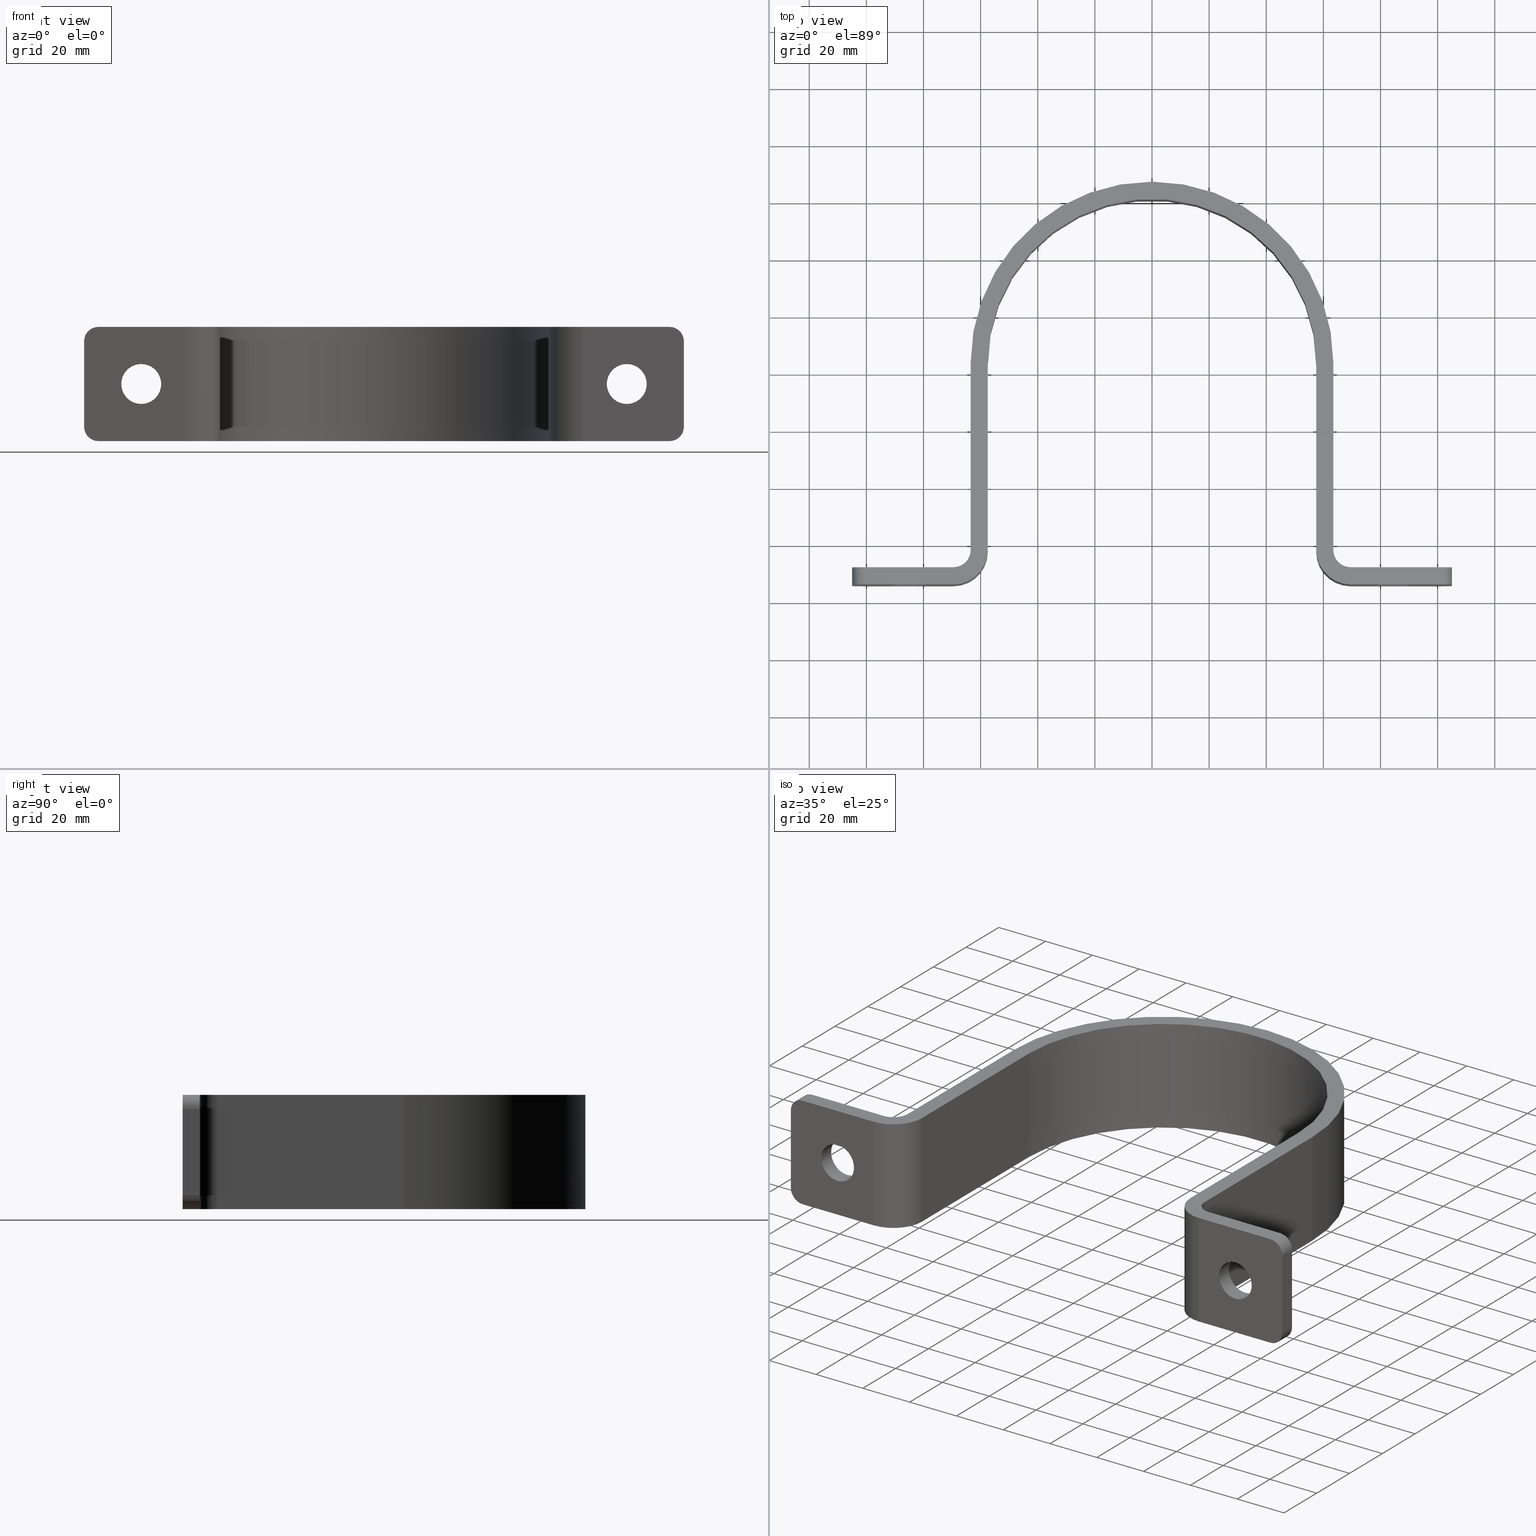
[diagram: canonical four-view strip — front | top / right | iso, engineering-drawing reading convention]
A machine part, canonical four-view strip (front | top / right | iso — engineering-drawing reading convention). The complete STEP part file that produces these views, byte-faithful:
ISO-10303-21;
HEADER;
FILE_DESCRIPTION (( 'STEP AP203' ),
    '1' );
FILE_NAME ('4229-30-25_REV_.step',
    '2026-01-09T02:45:49',
    ( '' ),
    ( '' ),
    'SwSTEP 2.0',
    'SolidWorks 2025',
    '' );
FILE_SCHEMA (( 'CONFIG_CONTROL_DESIGN' ));
ENDSEC;

DATA;
#1 = EDGE_CURVE ( 'NONE', #641, #24, #779, .T. ) ;
#2 = DIRECTION ( 'NONE',  ( -1.000000000000000000, 0.000000000000000000, 0.000000000000000000 ) ) ;
#3 = ORIENTED_EDGE ( 'NONE', *, *, #356, .F. ) ;
#4 = DIRECTION ( 'NONE',  ( -0.000000000000000000, -0.000000000000000000, 1.000000000000000000 ) ) ;
#5 = VECTOR ( 'NONE', #592, 1000.000000000000000 ) ;
#6 = CIRCLE ( 'NONE', #780, 5.000000000000000888 ) ;
#7 = EDGE_CURVE ( 'NONE', #269, #881, #540, .T. ) ;
#8 = ORIENTED_EDGE ( 'NONE', *, *, #146, .T. ) ;
#9 = DIRECTION ( 'NONE',  ( -0.000000000000000000, 1.000000000000000000, -0.000000000000000000 ) ) ;
#10 = ORIENTED_EDGE ( 'NONE', *, *, #7, .T. ) ;
#11 = ORIENTED_EDGE ( 'NONE', *, *, #170, .T. ) ;
#12 = EDGE_CURVE ( 'NONE', #216, #853, #547, .T. ) ;
#13 = CARTESIAN_POINT ( 'NONE',  ( -57.50000000000000711, 83.49999999999995737, 20.00000000000000000 ) ) ;
#14 = FACE_OUTER_BOUND ( 'NONE', #759, .T. ) ;
#15 = ORIENTED_EDGE ( 'NONE', *, *, #86, .F. ) ;
#16 = ORIENTED_EDGE ( 'NONE', *, *, #538, .T. ) ;
#17 = CYLINDRICAL_SURFACE ( 'NONE', #745, 5.000000000000000888 ) ;
#18 = AXIS2_PLACEMENT_3D ( 'NONE', #383, #25, #970 ) ;
#19 = AXIS2_PLACEMENT_3D ( 'NONE', #45, #320, #61 ) ;
#20 = CC_DESIGN_APPROVAL ( #656, ( #177 ) ) ;
#21 = VECTOR ( 'NONE', #48, 1000.000000000000000 ) ;
#22 = DIRECTION ( 'NONE',  ( 0.000000000000000000, 0.000000000000000000, 1.000000000000000000 ) ) ;
#23 = CIRCLE ( 'NONE', #359, 6.999999999999992006 ) ;
#24 = VERTEX_POINT ( 'NONE', #1067 ) ;
#25 = DIRECTION ( 'NONE',  ( -0.000000000000000000, 0.000000000000000000, -1.000000000000000000 ) ) ;
#26 = DIRECTION ( 'NONE',  ( -0.000000000000000000, 1.000000000000000000, -0.000000000000000000 ) ) ;
#27 = CARTESIAN_POINT ( 'NONE',  ( -57.50000000000000711, 17.99999999999997513, -20.00000000000000000 ) ) ;
#28 = ORIENTED_EDGE ( 'NONE', *, *, #666, .T. ) ;
#29 = DIRECTION ( 'NONE',  ( 0.000000000000000000, 1.000000000000000000, -0.000000000000000000 ) ) ;
#30 = CARTESIAN_POINT ( 'NONE',  ( 57.50000000000000711, 17.99999999999998934, 20.00000000000000000 ) ) ;
#31 = EDGE_CURVE ( 'NONE', #808, #641, #703, .T. ) ;
#32 = VERTEX_POINT ( 'NONE', #623 ) ;
#33 = DIRECTION ( 'NONE',  ( 1.000000000000000000, 0.000000000000000000, 0.000000000000000000 ) ) ;
#34 = VECTOR ( 'NONE', #330, 1000.000000000000000 ) ;
#35 = CIRCLE ( 'NONE', #115, 5.000000000000004441 ) ;
#36 = ORIENTED_EDGE ( 'NONE', *, *, #138, .T. ) ;
#37 = PRODUCT_DEFINITION_FORMATION_WITH_SPECIFIED_SOURCE ( 'ANY', '', #722, .NOT_KNOWN. ) ;
#38 = CIRCLE ( 'NONE', #1016, 6.000000000000005329 ) ;
#39 = FACE_OUTER_BOUND ( 'NONE', #195, .T. ) ;
#40 = ADVANCED_FACE ( 'NONE', ( #184 ), #535, .T. ) ;
#41 = ORIENTED_EDGE ( 'NONE', *, *, #347, .F. ) ;
#42 = CYLINDRICAL_SURFACE ( 'NONE', #541, 11.99999999999999645 ) ;
#43 = DIRECTION ( 'NONE',  ( -1.000000000000000000, 0.000000000000000000, 0.000000000000000000 ) ) ;
#44 = LINE ( 'NONE', #142, #114 ) ;
#45 = CARTESIAN_POINT ( 'NONE',  ( -99.99999999999997158, 11.99999999999997335, -15.00000000000000000 ) ) ;
#46 = ORIENTED_EDGE ( 'NONE', *, *, #728, .F. ) ;
#47 = DIRECTION ( 'NONE',  ( 2.312964634635742661E-15, -1.000000000000000000, 0.000000000000000000 ) ) ;
#48 = DIRECTION ( 'NONE',  ( 1.000000000000000000, 1.351258286550355342E-15, 0.000000000000000000 ) ) ;
#49 = EDGE_CURVE ( 'NONE', #32, #572, #517, .T. ) ;
#50 = LINE ( 'NONE', #736, #629 ) ;
#51 = CALENDAR_DATE ( 2026, 9, 1 ) ;
#52 = CARTESIAN_POINT ( 'NONE',  ( -105.0000000000000000, 5.999999999999974243, 20.00000000000000000 ) ) ;
#53 = ORIENTED_EDGE ( 'NONE', *, *, #742, .T. ) ;
#54 = CARTESIAN_POINT ( 'NONE',  ( -105.0000000000000000, 5.999999999999974243, 20.00000000000000000 ) ) ;
#55 = CARTESIAN_POINT ( 'NONE',  ( -99.99999999999998579, 11.99999999999997335, 15.00000000000000000 ) ) ;
#56 = EDGE_CURVE ( 'NONE', #1002, #271, #355, .T. ) ;
#57 = APPLICATION_PROTOCOL_DEFINITION ( 'international standard', 'config_control_design', 1994, #1032 ) ;
#58 = DIRECTION ( 'NONE',  ( -0.000000000000000000, -1.000000000000000000, -0.000000000000000000 ) ) ;
#59 = AXIS2_PLACEMENT_3D ( 'NONE', #304, #328, #654 ) ;
#60 = AXIS2_PLACEMENT_3D ( 'NONE', #167, #233, #1022 ) ;
#61 = DIRECTION ( 'NONE',  ( 0.000000000000000000, 0.000000000000000000, 1.000000000000000000 ) ) ;
#62 = ORIENTED_EDGE ( 'NONE', *, *, #683, .T. ) ;
#63 = CARTESIAN_POINT ( 'NONE',  ( -69.50000000000000000, 11.99999999999997335, 20.00000000000000000 ) ) ;
#64 = CARTESIAN_POINT ( 'NONE',  ( 69.50000000000001421, 5.999999999999990230, -20.00000000000000000 ) ) ;
#65 = LINE ( 'NONE', #488, #952 ) ;
#66 = APPROVAL_ROLE ( '' ) ;
#67 = PRODUCT_RELATED_PRODUCT_CATEGORY ( 'detail', '', ( #722 ) ) ;
#68 = CARTESIAN_POINT ( 'NONE',  ( -69.50000000000000000, 11.99999999999997335, 20.00000000000000000 ) ) ;
#69 = VERTEX_POINT ( 'NONE', #240 ) ;
#70 = CARTESIAN_POINT ( 'NONE',  ( -63.50000000000001421, 83.49999999999998579, -20.00000000000000000 ) ) ;
#71 = LINE ( 'NONE', #681, #452 ) ;
#72 = CARTESIAN_POINT ( 'NONE',  ( 69.50000000000001421, 5.999999999999990230, -20.00000000000000000 ) ) ;
#73 = PERSON_AND_ORGANIZATION ( #375, #644 ) ;
#74 = CYLINDRICAL_SURFACE ( 'NONE', #878, 6.999999999999992006 ) ;
#75 = EDGE_CURVE ( 'NONE', #303, #1064, #913, .T. ) ;
#76 = DESIGN_CONTEXT ( 'detailed design', #121, 'design' ) ;
#77 = ORIENTED_EDGE ( 'NONE', *, *, #31, .T. ) ;
#78 = PLANE ( 'NONE',  #18 ) ;
#79 = APPROVAL_DATE_TIME ( #750, #485 ) ;
#80 = DIRECTION ( 'NONE',  ( -1.351258286550355342E-15, 1.000000000000000000, 0.000000000000000000 ) ) ;
#81 = CIRCLE ( 'NONE', #686, 11.99999999999999645 ) ;
#82 = AXIS2_PLACEMENT_3D ( 'NONE', #667, #408, #137 ) ;
#83 = ORIENTED_EDGE ( 'NONE', *, *, #365, .T. ) ;
#84 = LOCAL_TIME ( 13, 45, 49.00000000000000000, #319 ) ;
#85 = CC_DESIGN_DATE_AND_TIME_ASSIGNMENT ( #434, #406, ( #690 ) ) ;
#86 = EDGE_CURVE ( 'NONE', #739, #361, #223, .T. ) ;
#87 = DIRECTION ( 'NONE',  ( -2.312964634635742661E-15, 1.000000000000000000, 0.000000000000000000 ) ) ;
#88 = CARTESIAN_POINT ( 'NONE',  ( -105.0000000000000000, 5.999999999999974243, -15.00000000000000355 ) ) ;
#89 = ORIENTED_EDGE ( 'NONE', *, *, #650, .F. ) ;
#90 = PLANE ( 'NONE',  #713 ) ;
#91 = EDGE_CURVE ( 'NONE', #837, #1015, #727, .T. ) ;
#92 = ORIENTED_EDGE ( 'NONE', *, *, #334, .F. ) ;
#93 = VERTEX_POINT ( 'NONE', #463 ) ;
#94 = CARTESIAN_POINT ( 'NONE',  ( 99.99999999999998579, 6.000000000000031086, -15.00000000000000000 ) ) ;
#95 = DIRECTION ( 'NONE',  ( 0.000000000000000000, 0.000000000000000000, 1.000000000000000000 ) ) ;
#96 = ORIENTED_EDGE ( 'NONE', *, *, #193, .T. ) ;
#97 = AXIS2_PLACEMENT_3D ( 'NONE', #791, #473, #1043 ) ;
#98 = VECTOR ( 'NONE', #647, 1000.000000000000000 ) ;
#99 = ORIENTED_EDGE ( 'NONE', *, *, #718, .T. ) ;
#100 = VECTOR ( 'NONE', #756, 1000.000000000000000 ) ;
#101 = CARTESIAN_POINT ( 'NONE',  ( 104.9999999999999858, 12.00000000000003908, 20.00000000000000000 ) ) ;
#102 = VECTOR ( 'NONE', #323, 1000.000000000000000 ) ;
#103 = VECTOR ( 'NONE', #1055, 1000.000000000000000 ) ;
#104 = VERTEX_POINT ( 'NONE', #967 ) ;
#105 = ORIENTED_EDGE ( 'NONE', *, *, #1001, .F. ) ;
#106 = DIRECTION ( 'NONE',  ( 0.000000000000000000, 0.000000000000000000, 1.000000000000000000 ) ) ;
#107 = ORIENTED_EDGE ( 'NONE', *, *, #585, .T. ) ;
#108 = EDGE_CURVE ( 'NONE', #808, #706, #799, .T. ) ;
#109 = EDGE_LOOP ( 'NONE', ( #465, #28, #950, #157 ) ) ;
#110 = CARTESIAN_POINT ( 'NONE',  ( -69.50000000000000000, 5.999999999999974243, 20.00000000000000000 ) ) ;
#111 = ORIENTED_EDGE ( 'NONE', *, *, #108, .T. ) ;
#112 = LINE ( 'NONE', #556, #103 ) ;
#113 = DATE_AND_TIME ( #966, #524 ) ;
#114 = VECTOR ( 'NONE', #399, 1000.000000000000000 ) ;
#115 = AXIS2_PLACEMENT_3D ( 'NONE', #169, #80, #617 ) ;
#116 = DIRECTION ( 'NONE',  ( -0.000000000000000000, 0.000000000000000000, -1.000000000000000000 ) ) ;
#117 = ORIENTED_EDGE ( 'NONE', *, *, #519, .T. ) ;
#118 = DIRECTION ( 'NONE',  ( 0.000000000000000000, 0.000000000000000000, 1.000000000000000000 ) ) ;
#119 = DIRECTION ( 'NONE',  ( -2.312964634635742661E-15, 1.000000000000000000, -0.000000000000000000 ) ) ;
#120 = EDGE_CURVE ( 'NONE', #515, #276, #297, .T. ) ;
#121 = APPLICATION_CONTEXT ( 'configuration controlled 3d designs of mechanical parts and assemblies' ) ;
#122 = VERTEX_POINT ( 'NONE', #810 ) ;
#123 = DIRECTION ( 'NONE',  ( -0.000000000000000000, 1.000000000000000000, -0.000000000000000000 ) ) ;
#124 = ORIENTED_EDGE ( 'NONE', *, *, #1, .T. ) ;
#125 = ADVANCED_FACE ( 'NONE', ( #39 ), #589, .F. ) ;
#126 = EDGE_CURVE ( 'NONE', #786, #428, #1101, .T. ) ;
#127 = DIRECTION ( 'NONE',  ( 0.000000000000000000, 1.000000000000000000, -0.000000000000000000 ) ) ;
#128 = ORIENTED_EDGE ( 'NONE', *, *, #7, .F. ) ;
#129 = DIRECTION ( 'NONE',  ( 1.000000000000000000, 1.351258286550355342E-15, 0.000000000000000000 ) ) ;
#130 = CYLINDRICAL_SURFACE ( 'NONE', #1061, 63.50000000000001421 ) ;
#131 = DIRECTION ( 'NONE',  ( 0.000000000000000000, 0.000000000000000000, 1.000000000000000000 ) ) ;
#132 = AXIS2_PLACEMENT_3D ( 'NONE', #695, #9, #708 ) ;
#133 = VECTOR ( 'NONE', #834, 1000.000000000000000 ) ;
#134 = EDGE_LOOP ( 'NONE', ( #796, #693, #3, #306 ) ) ;
#135 = AXIS2_PLACEMENT_3D ( 'NONE', #890, #47, #402 ) ;
#136 = CIRCLE ( 'NONE', #252, 63.50000000000001421 ) ;
#137 = DIRECTION ( 'NONE',  ( -1.000000000000000000, 0.000000000000000000, 0.000000000000000000 ) ) ;
#138 = EDGE_CURVE ( 'NONE', #1002, #401, #578, .T. ) ;
#139 = ORIENTED_EDGE ( 'NONE', *, *, #702, .T. ) ;
#140 = FACE_OUTER_BOUND ( 'NONE', #931, .T. ) ;
#141 = DIRECTION ( 'NONE',  ( -1.000000000000000000, 0.000000000000000000, 0.000000000000000000 ) ) ;
#142 = CARTESIAN_POINT ( 'NONE',  ( -99.99999999999998579, 17.99999999999997513, 20.00000000000000000 ) ) ;
#143 = APPROVAL_ROLE ( '' ) ;
#144 = DIRECTION ( 'NONE',  ( -1.000000000000000000, 0.000000000000000000, 0.000000000000000000 ) ) ;
#145 = ORIENTED_EDGE ( 'NONE', *, *, #570, .F. ) ;
#146 = EDGE_CURVE ( 'NONE', #190, #762, #1000, .T. ) ;
#147 = CARTESIAN_POINT ( 'NONE',  ( -63.50000000000001421, 5.999999999999974243, 20.00000000000000000 ) ) ;
#148 = CARTESIAN_POINT ( 'NONE',  ( 57.50000000000000711, 17.99999999999998934, 20.00000000000000000 ) ) ;
#149 = CARTESIAN_POINT ( 'NONE',  ( 0.000000000000000000, 0.000000000000000000, 0.000000000000000000 ) ) ;
#150 = DIRECTION ( 'NONE',  ( -0.000000000000000000, -0.000000000000000000, -1.000000000000000000 ) ) ;
#151 = DIRECTION ( 'NONE',  ( -0.000000000000000000, 0.000000000000000000, -1.000000000000000000 ) ) ;
#152 = VERTEX_POINT ( 'NONE', #507 ) ;
#153 = LINE ( 'NONE', #63, #1047 ) ;
#154 = FACE_OUTER_BOUND ( 'NONE', #453, .T. ) ;
#155 = DIRECTION ( 'NONE',  ( 0.000000000000000000, -0.000000000000000000, 1.000000000000000000 ) ) ;
#156 = CARTESIAN_POINT ( 'NONE',  ( 104.9999999999999858, 12.00000000000003908, 15.00000000000000000 ) ) ;
#157 = ORIENTED_EDGE ( 'NONE', *, *, #570, .T. ) ;
#158 = CARTESIAN_POINT ( 'NONE',  ( -85.00000000000000000, 11.99999999999997335, 6.999999999999992006 ) ) ;
#159 = DIRECTION ( 'NONE',  ( -0.000000000000000000, -0.000000000000000000, 1.000000000000000000 ) ) ;
#160 = DIRECTION ( 'NONE',  ( 1.000000000000000000, 0.000000000000000000, 0.000000000000000000 ) ) ;
#161 = ADVANCED_FACE ( 'NONE', ( #985 ), #836, .T. ) ;
#162 = CARTESIAN_POINT ( 'NONE',  ( -105.0000000000000000, 5.999999999999974243, 15.00000000000000000 ) ) ;
#163 = ORIENTED_EDGE ( 'NONE', *, *, #193, .F. ) ;
#164 = ORIENTED_EDGE ( 'NONE', *, *, #924, .T. ) ;
#165 = CARTESIAN_POINT ( 'NONE',  ( -57.50000000000000711, 83.49999999999995737, 20.00000000000000000 ) ) ;
#166 = APPROVAL_STATUS ( 'not_yet_approved' ) ;
#167 = CARTESIAN_POINT ( 'NONE',  ( 69.50000000000000000, 17.99999999999998934, 20.00000000000000000 ) ) ;
#168 = EDGE_CURVE ( 'NONE', #93, #847, #371, .T. ) ;
#169 = CARTESIAN_POINT ( 'NONE',  ( 99.99999999999997158, 12.00000000000003197, -15.00000000000000000 ) ) ;
#170 = EDGE_CURVE ( 'NONE', #271, #520, #652, .T. ) ;
#171 = VERTEX_POINT ( 'NONE', #68 ) ;
#172 = DIRECTION ( 'NONE',  ( 1.351258286550355342E-15, -1.000000000000000000, -0.000000000000000000 ) ) ;
#173 = CARTESIAN_POINT ( 'NONE',  ( -99.99999999999997158, 11.99999999999997335, -20.00000000000000000 ) ) ;
#174 = AXIS2_PLACEMENT_3D ( 'NONE', #366, #635, #711 ) ;
#175 = VECTOR ( 'NONE', #127, 1000.000000000000000 ) ;
#176 = ORIENTED_EDGE ( 'NONE', *, *, #279, .F. ) ;
#177 = SECURITY_CLASSIFICATION ( '', '', #430 ) ;
#178 = DIRECTION ( 'NONE',  ( 0.000000000000000000, 0.000000000000000000, 1.000000000000000000 ) ) ;
#179 = DIRECTION ( 'NONE',  ( -1.000000000000000000, 0.000000000000000000, 0.000000000000000000 ) ) ;
#180 = ORIENTED_EDGE ( 'NONE', *, *, #407, .F. ) ;
#181 = ADVANCED_FACE ( 'NONE', ( #817 ), #738, .T. ) ;
#182 = DIRECTION ( 'NONE',  ( -1.000000000000000000, 4.625929269271481378E-15, 0.000000000000000000 ) ) ;
#183 = CARTESIAN_POINT ( 'NONE',  ( -99.99999999999997158, 5.999999999999974243, -15.00000000000000000 ) ) ;
#184 = FACE_OUTER_BOUND ( 'NONE', #321, .T. ) ;
#185 = ORIENTED_EDGE ( 'NONE', *, *, #467, .T. ) ;
#186 = DIRECTION ( 'NONE',  ( 1.000000000000000000, 2.312964634635742661E-15, -0.000000000000000000 ) ) ;
#187 = EDGE_LOOP ( 'NONE', ( #145, #1102, #280, #996 ) ) ;
#188 = VECTOR ( 'NONE', #874, 1000.000000000000000 ) ;
#189 = CIRCLE ( 'NONE', #865, 5.000000000000004441 ) ;
#190 = VERTEX_POINT ( 'NONE', #823 ) ;
#191 = DIRECTION ( 'NONE',  ( -0.000000000000000000, -0.000000000000000000, -1.000000000000000000 ) ) ;
#192 = AXIS2_PLACEMENT_3D ( 'NONE', #94, #172, #353 ) ;
#193 = EDGE_CURVE ( 'NONE', #723, #190, #907, .T. ) ;
#194 = DIRECTION ( 'NONE',  ( -0.000000000000000000, 1.000000000000000000, -0.000000000000000000 ) ) ;
#195 = EDGE_LOOP ( 'NONE', ( #124, #862, #733, #753 ) ) ;
#196 = PLANE ( 'NONE',  #464 ) ;
#197 = ADVANCED_FACE ( 'NONE', ( #993 ), #227, .T. ) ;
#198 = CARTESIAN_POINT ( 'NONE',  ( 0.000000000000000000, 83.49999999999997158, -20.00000000000000000 ) ) ;
#199 = ORIENTED_EDGE ( 'NONE', *, *, #984, .T. ) ;
#200 = DIRECTION ( 'NONE',  ( -1.000000000000000000, 0.000000000000000000, 0.000000000000000000 ) ) ;
#201 = DIRECTION ( 'NONE',  ( -1.000000000000000000, 0.000000000000000000, 0.000000000000000000 ) ) ;
#202 = EDGE_LOOP ( 'NONE', ( #868, #393, #867, #673 ) ) ;
#203 = FACE_OUTER_BOUND ( 'NONE', #782, .T. ) ;
#204 = APPROVAL_PERSON_ORGANIZATION ( #929, #656, #961 ) ;
#205 = VECTOR ( 'NONE', #307, 1000.000000000000000 ) ;
#206 =( LENGTH_UNIT ( ) NAMED_UNIT ( * ) SI_UNIT ( .MILLI., .METRE. ) );
#207 = ORIENTED_EDGE ( 'NONE', *, *, #245, .T. ) ;
#208 = LINE ( 'NONE', #886, #594 ) ;
#209 = EDGE_CURVE ( 'NONE', #271, #327, #490, .T. ) ;
#210 = CARTESIAN_POINT ( 'NONE',  ( 85.00000000000000000, 11.99999999999997513, -3.122502256758252770E-14 ) ) ;
#211 = CARTESIAN_POINT ( 'NONE',  ( -99.99999999999997158, 17.99999999999998934, -15.00000000000000000 ) ) ;
#212 = ORIENTED_EDGE ( 'NONE', *, *, #585, .F. ) ;
#213 = CYLINDRICAL_SURFACE ( 'NONE', #135, 5.000000000000004441 ) ;
#214 = ORIENTED_EDGE ( 'NONE', *, *, #609, .F. ) ;
#215 = CARTESIAN_POINT ( 'NONE',  ( -105.0000000000000000, 5.999999999999974243, 20.00000000000000000 ) ) ;
#216 = VERTEX_POINT ( 'NONE', #497 ) ;
#217 = CARTESIAN_POINT ( 'NONE',  ( -63.50000000000001421, 17.99999999999997513, 20.00000000000000000 ) ) ;
#218 = FACE_OUTER_BOUND ( 'NONE', #290, .T. ) ;
#219 = CARTESIAN_POINT ( 'NONE',  ( -105.0000000000000000, 11.99999999999997335, 20.00000000000000000 ) ) ;
#220 = CIRCLE ( 'NONE', #1105, 6.999999999999992006 ) ;
#221 = PERSON_AND_ORGANIZATION_ROLE ( 'classification_officer' ) ;
#222 = VECTOR ( 'NONE', #150, 1000.000000000000000 ) ;
#223 = LINE ( 'NONE', #422, #794 ) ;
#224 = AXIS2_PLACEMENT_3D ( 'NONE', #1076, #734, #179 ) ;
#225 = AXIS2_PLACEMENT_3D ( 'NONE', #210, #562, #840 ) ;
#226 = EDGE_CURVE ( 'NONE', #853, #641, #828, .T. ) ;
#227 = PLANE ( 'NONE',  #595 ) ;
#228 = ORIENTED_EDGE ( 'NONE', *, *, #924, .F. ) ;
#229 = CARTESIAN_POINT ( 'NONE',  ( -69.50000000000000000, 11.99999999999997335, -20.00000000000000000 ) ) ;
#230 = DIRECTION ( 'NONE',  ( 0.000000000000000000, -0.000000000000000000, 1.000000000000000000 ) ) ;
#231 = CARTESIAN_POINT ( 'NONE',  ( -63.50000000000001421, 17.99999999999997513, -20.00000000000000000 ) ) ;
#232 = APPROVAL_STATUS ( 'not_yet_approved' ) ;
#233 = DIRECTION ( 'NONE',  ( 0.000000000000000000, 0.000000000000000000, 1.000000000000000000 ) ) ;
#234 = DIRECTION ( 'NONE',  ( -1.000000000000000000, 0.000000000000000000, 0.000000000000000000 ) ) ;
#235 = ORIENTED_EDGE ( 'NONE', *, *, #326, .T. ) ;
#236 = EDGE_CURVE ( 'NONE', #786, #881, #424, .T. ) ;
#237 = PLANE ( 'NONE',  #811 ) ;
#238 = CARTESIAN_POINT ( 'NONE',  ( 69.50000000000000000, 17.99999999999998934, 20.00000000000000000 ) ) ;
#239 = DIRECTION ( 'NONE',  ( 0.000000000000000000, 0.000000000000000000, 1.000000000000000000 ) ) ;
#240 = CARTESIAN_POINT ( 'NONE',  ( 57.50000000000000711, 83.49999999999998579, 20.00000000000000000 ) ) ;
#241 = CARTESIAN_POINT ( 'NONE',  ( -105.0000000000000000, 5.999999999999974243, -20.00000000000000000 ) ) ;
#242 = ORIENTED_EDGE ( 'NONE', *, *, #957, .T. ) ;
#243 = DIRECTION ( 'NONE',  ( 1.000000000000000000, 0.000000000000000000, -0.000000000000000000 ) ) ;
#244 = FACE_OUTER_BOUND ( 'NONE', #885, .T. ) ;
#245 = EDGE_CURVE ( 'NONE', #638, #104, #672, .T. ) ;
#246 = CARTESIAN_POINT ( 'NONE',  ( 69.50000000000000000, 17.99999999999998934, 20.00000000000000000 ) ) ;
#247 = COORDINATED_UNIVERSAL_TIME_OFFSET ( 10, 0, .AHEAD. ) ;
#248 = VECTOR ( 'NONE', #1019, 1000.000000000000000 ) ;
#249 = AXIS2_PLACEMENT_3D ( 'NONE', #1100, #1037, #265 ) ;
#250 = CARTESIAN_POINT ( 'NONE',  ( -69.50000000000000000, 17.99999999999997513, 20.00000000000000000 ) ) ;
#251 = ORIENTED_EDGE ( 'NONE', *, *, #604, .T. ) ;
#252 = AXIS2_PLACEMENT_3D ( 'NONE', #561, #960, #283 ) ;
#253 = DIRECTION ( 'NONE',  ( -0.000000000000000000, -0.000000000000000000, -1.000000000000000000 ) ) ;
#254 = CARTESIAN_POINT ( 'NONE',  ( -85.00000000000000000, 5.999999999999967137, 0.000000000000000000 ) ) ;
#255 = ADVANCED_FACE ( 'NONE', ( #302 ), #979, .T. ) ;
#256 = PERSON_AND_ORGANIZATION ( #375, #644 ) ;
#257 = DIRECTION ( 'NONE',  ( -0.000000000000000000, -0.000000000000000000, -1.000000000000000000 ) ) ;
#258 = ORIENTED_EDGE ( 'NONE', *, *, #666, .F. ) ;
#259 = ORIENTED_EDGE ( 'NONE', *, *, #785, .T. ) ;
#260 = DIRECTION ( 'NONE',  ( -0.000000000000000000, 0.000000000000000000, -1.000000000000000000 ) ) ;
#261 = ADVANCED_FACE ( 'NONE', ( #610 ), #701, .T. ) ;
#262 = EDGE_LOOP ( 'NONE', ( #729, #277, #619, #529 ) ) ;
#263 = ORIENTED_EDGE ( 'NONE', *, *, #774, .F. ) ;
#264 = DIRECTION ( 'NONE',  ( 1.000000000000000000, 0.000000000000000000, -0.000000000000000000 ) ) ;
#265 = DIRECTION ( 'NONE',  ( -1.000000000000000000, 0.000000000000000000, 0.000000000000000000 ) ) ;
#266 = LOCAL_TIME ( 13, 45, 49.00000000000000000, #313 ) ;
#267 = EDGE_CURVE ( 'NONE', #520, #847, #1023, .T. ) ;
#268 = VECTOR ( 'NONE', #743, 1000.000000000000000 ) ;
#269 = VERTEX_POINT ( 'NONE', #930 ) ;
#270 = AXIS2_PLACEMENT_3D ( 'NONE', #217, #1003, #243 ) ;
#271 = VERTEX_POINT ( 'NONE', #162 ) ;
#272 = CARTESIAN_POINT ( 'NONE',  ( -85.00000000000000000, 5.999999999999967137, -6.999999999999992006 ) ) ;
#273 = LINE ( 'NONE', #599, #100 ) ;
#274 = DIRECTION ( 'NONE',  ( 0.000000000000000000, 1.000000000000000000, 0.000000000000000000 ) ) ;
#275 = CARTESIAN_POINT ( 'NONE',  ( -69.50000000000000000, 5.999999999999974243, 20.00000000000000000 ) ) ;
#276 = VERTEX_POINT ( 'NONE', #342 ) ;
#277 = ORIENTED_EDGE ( 'NONE', *, *, #126, .F. ) ;
#278 = DIRECTION ( 'NONE',  ( 1.000000000000000000, 0.000000000000000000, 0.000000000000000000 ) ) ;
#279 = EDGE_CURVE ( 'NONE', #361, #758, #35, .T. ) ;
#280 = ORIENTED_EDGE ( 'NONE', *, *, #146, .F. ) ;
#281 = ORIENTED_EDGE ( 'NONE', *, *, #563, .T. ) ;
#282 = AXIS2_PLACEMENT_3D ( 'NONE', #147, #754, #310 ) ;
#283 = DIRECTION ( 'NONE',  ( 1.000000000000000000, 0.000000000000000000, 0.000000000000000000 ) ) ;
#284 = CC_DESIGN_PERSON_AND_ORGANIZATION_ASSIGNMENT ( #421, #1012, ( #690 ) ) ;
#285 = CARTESIAN_POINT ( 'NONE',  ( -85.00000000000000000, 11.99999999999997335, -6.999999999999992006 ) ) ;
#286 = ORIENTED_EDGE ( 'NONE', *, *, #1072, .F. ) ;
#287 = EDGE_LOOP ( 'NONE', ( #352, #1108, #634, #949, #281, #660 ) ) ;
#288 = PLANE ( 'NONE',  #174 ) ;
#289 = PLANE ( 'NONE',  #481 ) ;
#290 = EDGE_LOOP ( 'NONE', ( #105, #1069, #164, #873 ) ) ;
#291 = CARTESIAN_POINT ( 'NONE',  ( -99.99999999999998579, 5.999999999999974243, 15.00000000000000000 ) ) ;
#292 = CARTESIAN_POINT ( 'NONE',  ( 99.99999999999997158, 12.00000000000002665, 15.00000000000000000 ) ) ;
#293 = ADVANCED_FACE ( 'NONE', ( #351 ), #534, .F. ) ;
#294 = ORIENTED_EDGE ( 'NONE', *, *, #86, .T. ) ;
#295 = CIRCLE ( 'NONE', #915, 57.50000000000000711 ) ;
#296 = DIRECTION ( 'NONE',  ( -0.000000000000000000, -0.000000000000000000, -1.000000000000000000 ) ) ;
#297 = CIRCLE ( 'NONE', #573, 6.999999999999992006 ) ;
#298 = AXIS2_PLACEMENT_3D ( 'NONE', #1107, #446, #775 ) ;
#299 = FACE_OUTER_BOUND ( 'NONE', #262, .T. ) ;
#300 = CIRCLE ( 'NONE', #922, 5.000000000000004441 ) ;
#301 = PRODUCT_DEFINITION_SHAPE ( 'NONE', 'NONE',  #690 ) ;
#302 = FACE_OUTER_BOUND ( 'NONE', #627, .T. ) ;
#303 = VERTEX_POINT ( 'NONE', #860 ) ;
#304 = CARTESIAN_POINT ( 'NONE',  ( 69.50000000000000000, 17.99999999999998934, -20.00000000000000000 ) ) ;
#305 = ADVANCED_FACE ( 'NONE', ( #513 ), #74, .F. ) ;
#306 = ORIENTED_EDGE ( 'NONE', *, *, #367, .T. ) ;
#307 = DIRECTION ( 'NONE',  ( -1.000000000000000000, 0.000000000000000000, 0.000000000000000000 ) ) ;
#308 = ORIENTED_EDGE ( 'NONE', *, *, #696, .F. ) ;
#309 = CARTESIAN_POINT ( 'NONE',  ( 99.99999999999998579, 6.000000000000031086, 20.00000000000000000 ) ) ;
#310 = DIRECTION ( 'NONE',  ( 0.000000000000000000, 0.000000000000000000, 1.000000000000000000 ) ) ;
#311 = DIRECTION ( 'NONE',  ( -0.000000000000000000, 1.000000000000000000, -0.000000000000000000 ) ) ;
#312 = EDGE_CURVE ( 'NONE', #401, #216, #746, .T. ) ;
#313 = COORDINATED_UNIVERSAL_TIME_OFFSET ( 10, 0, .AHEAD. ) ;
#314 = CARTESIAN_POINT ( 'NONE',  ( -85.00000000000000000, 11.99999999999997335, 0.000000000000000000 ) ) ;
#315 = ORIENTED_EDGE ( 'NONE', *, *, #1053, .F. ) ;
#316 = DIRECTION ( 'NONE',  ( -0.000000000000000000, -0.000000000000000000, -1.000000000000000000 ) ) ;
#317 = CARTESIAN_POINT ( 'NONE',  ( 69.50000000000000000, 11.99999999999998934, 20.00000000000000000 ) ) ;
#318 = AXIS2_PLACEMENT_3D ( 'NONE', #537, #264, #260 ) ;
#319 = COORDINATED_UNIVERSAL_TIME_OFFSET ( 10, 0, .AHEAD. ) ;
#320 = DIRECTION ( 'NONE',  ( 0.000000000000000000, 1.000000000000000000, 0.000000000000000000 ) ) ;
#321 = EDGE_LOOP ( 'NONE', ( #343, #16, #315, #1045 ) ) ;
#322 = DIRECTION ( 'NONE',  ( 0.000000000000000000, 1.000000000000000000, 0.000000000000000000 ) ) ;
#323 = DIRECTION ( 'NONE',  ( -0.000000000000000000, 1.000000000000000000, 0.000000000000000000 ) ) ;
#324 = PERSON_AND_ORGANIZATION_ROLE ( 'design_supplier' ) ;
#325 = DIRECTION ( 'NONE',  ( -0.000000000000000000, 1.000000000000000000, -0.000000000000000000 ) ) ;
#326 = EDGE_CURVE ( 'NONE', #327, #638, #972, .T. ) ;
#327 = VERTEX_POINT ( 'NONE', #88 ) ;
#328 = DIRECTION ( 'NONE',  ( 0.000000000000000000, 0.000000000000000000, 1.000000000000000000 ) ) ;
#329 = PLANE ( 'NONE',  #282 ) ;
#330 = DIRECTION ( 'NONE',  ( 0.000000000000000000, -1.000000000000000000, 0.000000000000000000 ) ) ;
#331 = APPLICATION_PROTOCOL_DEFINITION ( 'international standard', 'config_control_design', 1994, #121 ) ;
#332 = CARTESIAN_POINT ( 'NONE',  ( 57.50000000000000711, 83.49999999999995737, 20.00000000000000000 ) ) ;
#333 = ORIENTED_EDGE ( 'NONE', *, *, #712, .T. ) ;
#334 = EDGE_CURVE ( 'NONE', #638, #93, #431, .T. ) ;
#335 = DIRECTION ( 'NONE',  ( -0.000000000000000000, 0.000000000000000000, -1.000000000000000000 ) ) ;
#336 = ORIENTED_EDGE ( 'NONE', *, *, #245, .F. ) ;
#337 = EDGE_CURVE ( 'NONE', #486, #444, #273, .T. ) ;
#338 = DIRECTION ( 'NONE',  ( 1.000000000000000000, 0.000000000000000000, 0.000000000000000000 ) ) ;
#339 = COORDINATED_UNIVERSAL_TIME_OFFSET ( 10, 0, .AHEAD. ) ;
#340 = CIRCLE ( 'NONE', #386, 6.000000000000005329 ) ;
#341 = AXIS2_PLACEMENT_3D ( 'NONE', #1083, #1006, #234 ) ;
#342 = CARTESIAN_POINT ( 'NONE',  ( -85.00000000000000000, 11.99999999999997335, 6.999999999999992006 ) ) ;
#343 = ORIENTED_EDGE ( 'NONE', *, *, #91, .T. ) ;
#344 = CIRCLE ( 'NONE', #132, 6.999999999999992006 ) ;
#345 = ORIENTED_EDGE ( 'NONE', *, *, #774, .T. ) ;
#346 = DIRECTION ( 'NONE',  ( -0.000000000000000000, 1.000000000000000000, -0.000000000000000000 ) ) ;
#347 = EDGE_CURVE ( 'NONE', #24, #572, #692, .T. ) ;
#348 = EDGE_LOOP ( 'NONE', ( #889, #781, #648, #680 ) ) ;
#349 = FACE_OUTER_BOUND ( 'NONE', #688, .T. ) ;
#350 = ADVANCED_FACE ( 'NONE', ( #1096, #926 ), #518, .F. ) ;
#351 = FACE_OUTER_BOUND ( 'NONE', #542, .T. ) ;
#352 = ORIENTED_EDGE ( 'NONE', *, *, #604, .F. ) ;
#353 = DIRECTION ( 'NONE',  ( -1.000000000000000000, -1.387778780781444492E-15, 0.000000000000000000 ) ) ;
#354 = CIRCLE ( 'NONE', #59, 6.000000000000005329 ) ;
#355 = CIRCLE ( 'NONE', #700, 5.000000000000000888 ) ;
#356 = EDGE_CURVE ( 'NONE', #69, #458, #526, .T. ) ;
#357 = VERTEX_POINT ( 'NONE', #679 ) ;
#358 = VECTOR ( 'NONE', #767, 1000.000000000000000 ) ;
#359 = AXIS2_PLACEMENT_3D ( 'NONE', #822, #311, #239 ) ;
#360 = DIRECTION ( 'NONE',  ( -0.000000000000000000, -0.000000000000000000, -1.000000000000000000 ) ) ;
#361 = VERTEX_POINT ( 'NONE', #443 ) ;
#362 = CARTESIAN_POINT ( 'NONE',  ( -69.50000000000000000, 17.99999999999997513, -20.00000000000000000 ) ) ;
#363 = ORIENTED_EDGE ( 'NONE', *, *, #168, .F. ) ;
#364 = ORIENTED_EDGE ( 'NONE', *, *, #312, .F. ) ;
#365 = EDGE_CURVE ( 'NONE', #357, #216, #1013, .T. ) ;
#366 = CARTESIAN_POINT ( 'NONE',  ( 63.50000000000001421, 83.49999999999998579, 20.00000000000000000 ) ) ;
#367 = EDGE_CURVE ( 'NONE', #69, #24, #71, .T. ) ;
#368 = CARTESIAN_POINT ( 'NONE',  ( -69.50000000000000000, 11.99999999999997335, -20.00000000000000000 ) ) ;
#369 = ORIENTED_EDGE ( 'NONE', *, *, #138, .F. ) ;
#370 = AXIS2_PLACEMENT_3D ( 'NONE', #101, #186, #87 ) ;
#371 = CIRCLE ( 'NONE', #19, 5.000000000000000888 ) ;
#372 = CC_DESIGN_APPROVAL ( #485, ( #690 ) ) ;
#373 = ORIENTED_EDGE ( 'NONE', *, *, #901, .F. ) ;
#374 = CARTESIAN_POINT ( 'NONE',  ( -69.50000000000000000, 17.99999999999997513, -20.00000000000000000 ) ) ;
#375 = PERSON ( 'UNSPECIFIED', 'UNSPECIFIED', 'UNSPECIFIED', ('UNSPECIFIED'), ('UNSPECIFIED'), ('UNSPECIFIED') ) ;
#376 = DIRECTION ( 'NONE',  ( 2.312964634635743056E-15, -1.000000000000000000, 0.000000000000000000 ) ) ;
#377 = EDGE_CURVE ( 'NONE', #457, #758, #813, .T. ) ;
#378 = ORIENTED_EDGE ( 'NONE', *, *, #1110, .T. ) ;
#379 = PLANE ( 'NONE',  #97 ) ;
#380 = DIRECTION ( 'NONE',  ( -1.000000000000000000, 0.000000000000000000, 0.000000000000000000 ) ) ;
#381 = ADVANCED_FACE ( 'NONE', ( #580 ), #831, .T. ) ;
#382 = ORIENTED_EDGE ( 'NONE', *, *, #226, .F. ) ;
#383 = CARTESIAN_POINT ( 'NONE',  ( -57.50000000000000711, 17.99999999999997513, -20.00000000000000000 ) ) ;
#384 = DIRECTION ( 'NONE',  ( 0.000000000000000000, 0.000000000000000000, 1.000000000000000000 ) ) ;
#385 = EDGE_LOOP ( 'NONE', ( #768, #483, #180, #228 ) ) ;
#386 = AXIS2_PLACEMENT_3D ( 'NONE', #246, #671, #500 ) ;
#387 = AXIS2_PLACEMENT_3D ( 'NONE', #198, #564, #632 ) ;
#388 = CARTESIAN_POINT ( 'NONE',  ( 0.000000000000000000, 83.49999999999997158, -20.00000000000000000 ) ) ;
#389 = AXIS2_PLACEMENT_3D ( 'NONE', #388, #191, #278 ) ;
#390 = VECTOR ( 'NONE', #788, 1000.000000000000000 ) ;
#391 =( NAMED_UNIT ( * ) SI_UNIT ( $, .STERADIAN. ) SOLID_ANGLE_UNIT ( ) );
#392 = AXIS2_PLACEMENT_3D ( 'NONE', #1052, #642, #469 ) ;
#393 = ORIENTED_EDGE ( 'NONE', *, *, #702, .F. ) ;
#394 = DIRECTION ( 'NONE',  ( 0.000000000000000000, 0.000000000000000000, 1.000000000000000000 ) ) ;
#395 = EDGE_LOOP ( 'NONE', ( #336, #569, #251, #62 ) ) ;
#396 = ADVANCED_FACE ( 'NONE', ( #154 ), #419, .T. ) ;
#397 = LINE ( 'NONE', #1009, #795 ) ;
#398 = CARTESIAN_POINT ( 'NONE',  ( -57.50000000000000711, 5.999999999999974243, 20.00000000000000000 ) ) ;
#399 = DIRECTION ( 'NONE',  ( -0.000000000000000000, -1.000000000000000000, 0.000000000000000000 ) ) ;
#400 = DIRECTION ( 'NONE',  ( 0.000000000000000000, 0.000000000000000000, 1.000000000000000000 ) ) ;
#401 = VERTEX_POINT ( 'NONE', #910 ) ;
#402 = DIRECTION ( 'NONE',  ( 1.000000000000000000, 2.081668171172166541E-15, 0.000000000000000000 ) ) ;
#403 = PLANE ( 'NONE',  #415 ) ;
#404 = ADVANCED_FACE ( 'NONE', ( #655 ), #329, .T. ) ;
#405 = DIRECTION ( 'NONE',  ( -0.000000000000000000, 1.000000000000000000, 0.000000000000000000 ) ) ;
#406 = DATE_TIME_ROLE ( 'creation_date' ) ;
#407 = EDGE_CURVE ( 'NONE', #32, #69, #1098, .T. ) ;
#408 = DIRECTION ( 'NONE',  ( -0.000000000000000000, -0.000000000000000000, -1.000000000000000000 ) ) ;
#409 = ORIENTED_EDGE ( 'NONE', *, *, #901, .T. ) ;
#410 = DIRECTION ( 'NONE',  ( -1.000000000000000000, -1.387778780781444492E-15, 0.000000000000000000 ) ) ;
#411 = LINE ( 'NONE', #1088, #5 ) ;
#412 = DIRECTION ( 'NONE',  ( 0.000000000000000000, 1.000000000000000000, 0.000000000000000000 ) ) ;
#413 = PERSON_AND_ORGANIZATION ( #375, #644 ) ;
#414 = AXIS2_PLACEMENT_3D ( 'NONE', #845, #622, #2 ) ;
#415 = AXIS2_PLACEMENT_3D ( 'NONE', #398, #988, #1017 ) ;
#416 = CARTESIAN_POINT ( 'NONE',  ( -57.50000000000000711, 83.49999999999995737, 20.00000000000000000 ) ) ;
#417 = ORIENTED_EDGE ( 'NONE', *, *, #365, .F. ) ;
#418 = DIRECTION ( 'NONE',  ( -0.000000000000000000, -0.000000000000000000, -1.000000000000000000 ) ) ;
#419 = PLANE ( 'NONE',  #880 ) ;
#420 = DIRECTION ( 'NONE',  ( 2.312964634635742661E-15, -1.000000000000000000, 0.000000000000000000 ) ) ;
#421 = PERSON_AND_ORGANIZATION ( #375, #644 ) ;
#422 = CARTESIAN_POINT ( 'NONE',  ( 104.9999999999999858, 12.00000000000003908, -15.00000000000000355 ) ) ;
#423 = ADVANCED_FACE ( 'NONE', ( #675 ), #403, .F. ) ;
#424 = LINE ( 'NONE', #1092, #726 ) ;
#425 = UNCERTAINTY_MEASURE_WITH_UNIT (LENGTH_MEASURE( 1.000000000000000082E-05 ), #206, 'distance_accuracy_value', 'NONE');
#426 = ORIENTED_EDGE ( 'NONE', *, *, #1, .F. ) ;
#427 = CARTESIAN_POINT ( 'NONE',  ( 85.00000000000000000, 5.999999999999970690, -7.000000000000023981 ) ) ;
#428 = VERTEX_POINT ( 'NONE', #427 ) ;
#429 = CARTESIAN_POINT ( 'NONE',  ( 85.00000000000000000, 11.99999999999997513, -3.122502256758252770E-14 ) ) ;
#430 = SECURITY_CLASSIFICATION_LEVEL ( 'unclassified' ) ;
#431 = LINE ( 'NONE', #173, #358 ) ;
#432 = EDGE_LOOP ( 'NONE', ( #1097, #908, #417, #975 ) ) ;
#433 = CARTESIAN_POINT ( 'NONE',  ( 99.99999999999997158, 12.00000000000003197, 20.00000000000000000 ) ) ;
#434 = DATE_AND_TIME ( #51, #84 ) ;
#435 = CIRCLE ( 'NONE', #192, 5.000000000000004441 ) ;
#436 = VECTOR ( 'NONE', #752, 1000.000000000000000 ) ;
#437 = CIRCLE ( 'NONE', #224, 11.99999999999999645 ) ;
#438 = VECTOR ( 'NONE', #376, 1000.000000000000000 ) ;
#439 = DIRECTION ( 'NONE',  ( -1.000000000000000000, 0.000000000000000000, 0.000000000000000000 ) ) ;
#440 = EDGE_LOOP ( 'NONE', ( #53, #560, #364, #829 ) ) ;
#441 = ADVANCED_FACE ( 'NONE', ( #218 ), #130, .T. ) ;
#442 = LINE ( 'NONE', #773, #893 ) ;
#443 = CARTESIAN_POINT ( 'NONE',  ( 104.9999999999999858, 12.00000000000003908, -15.00000000000000355 ) ) ;
#444 = VERTEX_POINT ( 'NONE', #825 ) ;
#445 = DIRECTION ( 'NONE',  ( 0.000000000000000000, 0.000000000000000000, 1.000000000000000000 ) ) ;
#446 = DIRECTION ( 'NONE',  ( -1.351258286550355342E-15, 1.000000000000000000, 0.000000000000000000 ) ) ;
#447 = ORIENTED_EDGE ( 'NONE', *, *, #1027, .F. ) ;
#448 = DIRECTION ( 'NONE',  ( -0.000000000000000000, -0.000000000000000000, -1.000000000000000000 ) ) ;
#449 = AXIS2_PLACEMENT_3D ( 'NONE', #219, #1095, #155 ) ;
#450 = ADVANCED_FACE ( 'NONE', ( #493, #244 ), #1077, .F. ) ;
#451 = VECTOR ( 'NONE', #129, 1000.000000000000000 ) ;
#452 = VECTOR ( 'NONE', #821, 1000.000000000000000 ) ;
#453 = EDGE_LOOP ( 'NONE', ( #474, #590, #842, #96 ) ) ;
#454 = EDGE_LOOP ( 'NONE', ( #117, #294, #1042, #584 ) ) ;
#455 = LINE ( 'NONE', #275, #615 ) ;
#456 = EDGE_CURVE ( 'NONE', #357, #706, #735, .T. ) ;
#457 = VERTEX_POINT ( 'NONE', #998 ) ;
#458 = VERTEX_POINT ( 'NONE', #1071 ) ;
#459 = LINE ( 'NONE', #646, #661 ) ;
#460 = EDGE_LOOP ( 'NONE', ( #378, #715, #964, #566 ) ) ;
#461 = ORIENTED_EDGE ( 'NONE', *, *, #968, .T. ) ;
#462 = CARTESIAN_POINT ( 'NONE',  ( 63.50000000000001421, 83.49999999999995737, 20.00000000000000000 ) ) ;
#463 = CARTESIAN_POINT ( 'NONE',  ( -99.99999999999997158, 11.99999999999997335, -20.00000000000000000 ) ) ;
#464 = AXIS2_PLACEMENT_3D ( 'NONE', #110, #106, #965 ) ;
#465 = ORIENTED_EDGE ( 'NONE', *, *, #377, .T. ) ;
#466 = CARTESIAN_POINT ( 'NONE',  ( 85.00000000000000000, 11.99999999999997513, -7.000000000000023981 ) ) ;
#467 = EDGE_CURVE ( 'NONE', #837, #468, #411, .T. ) ;
#468 = VERTEX_POINT ( 'NONE', #670 ) ;
#469 = DIRECTION ( 'NONE',  ( 1.000000000000000000, 0.000000000000000000, 0.000000000000000000 ) ) ;
#470 = CC_DESIGN_DATE_AND_TIME_ASSIGNMENT ( #906, #685, ( #177 ) ) ;
#471 = PLANE ( 'NONE',  #1036 ) ;
#472 = VERTEX_POINT ( 'NONE', #920 ) ;
#473 = DIRECTION ( 'NONE',  ( 0.000000000000000000, 0.000000000000000000, 1.000000000000000000 ) ) ;
#474 = ORIENTED_EDGE ( 'NONE', *, *, #1080, .F. ) ;
#475 = EDGE_CURVE ( 'NONE', #458, #837, #480, .T. ) ;
#476 = DIRECTION ( 'NONE',  ( -0.000000000000000000, 1.000000000000000000, -0.000000000000000000 ) ) ;
#477 = ORIENTED_EDGE ( 'NONE', *, *, #456, .T. ) ;
#478 = CARTESIAN_POINT ( 'NONE',  ( -69.50000000000000000, 17.99999999999997513, 20.00000000000000000 ) ) ;
#479 = CYLINDRICAL_SURFACE ( 'NONE', #631, 6.999999999999992006 ) ;
#480 = CIRCLE ( 'NONE', #1103, 11.99999999999999645 ) ;
#481 = AXIS2_PLACEMENT_3D ( 'NONE', #368, #116, #380 ) ;
#482 = LINE ( 'NONE', #815, #248 ) ;
#483 = ORIENTED_EDGE ( 'NONE', *, *, #962, .T. ) ;
#484 = DIRECTION ( 'NONE',  ( -0.000000000000000000, 1.000000000000000000, -0.000000000000000000 ) ) ;
#485 = APPROVAL ( #232, 'UNSPECIFIED' ) ;
#486 = VERTEX_POINT ( 'NONE', #839 ) ;
#487 = CARTESIAN_POINT ( 'NONE',  ( 57.50000000000000000, 11.99999999999997335, 20.00000000000000000 ) ) ;
#488 = CARTESIAN_POINT ( 'NONE',  ( 99.99999999999995737, 18.00000000000007105, -20.00000000000000000 ) ) ;
#489 = DIRECTION ( 'NONE',  ( 1.000000000000000000, 0.000000000000000000, 0.000000000000000000 ) ) ;
#490 = LINE ( 'NONE', #52, #98 ) ;
#491 = EDGE_LOOP ( 'NONE', ( #176, #15, #682, #258 ) ) ;
#492 = CARTESIAN_POINT ( 'NONE',  ( 99.99999999999998579, 6.000000000000031086, 15.00000000000000000 ) ) ;
#493 = FACE_BOUND ( 'NONE', #875, .T. ) ;
#494 = ADVANCED_FACE ( 'NONE', ( #601 ), #479, .F. ) ;
#495 = DIRECTION ( 'NONE',  ( 1.000000000000000000, 0.000000000000000000, 0.000000000000000000 ) ) ;
#496 = CARTESIAN_POINT ( 'NONE',  ( 63.50000000000001421, 83.49999999999998579, 20.00000000000000000 ) ) ;
#497 = CARTESIAN_POINT ( 'NONE',  ( -57.50000000000000711, 17.99999999999997513, 20.00000000000000000 ) ) ;
#498 = ORIENTED_EDGE ( 'NONE', *, *, #712, .F. ) ;
#499 = FACE_OUTER_BOUND ( 'NONE', #1024, .T. ) ;
#500 = DIRECTION ( 'NONE',  ( 1.000000000000000000, 0.000000000000000000, 0.000000000000000000 ) ) ;
#501 = CIRCLE ( 'NONE', #389, 63.50000000000001421 ) ;
#502 = EDGE_CURVE ( 'NONE', #1007, #837, #553, .T. ) ;
#503 = PERSON_AND_ORGANIZATION ( #375, #644 ) ;
#504 = AXIS2_PLACEMENT_3D ( 'NONE', #183, #941, #95 ) ;
#505 = VECTOR ( 'NONE', #316, 1000.000000000000000 ) ;
#506 = AXIS2_PLACEMENT_3D ( 'NONE', #292, #643, #971 ) ;
#507 = CARTESIAN_POINT ( 'NONE',  ( -99.99999999999998579, 11.99999999999997335, 20.00000000000000000 ) ) ;
#508 = MANIFOLD_SOLID_BREP ( 'Fillet1', #1082 ) ;
#509 = ORIENTED_EDGE ( 'NONE', *, *, #475, .T. ) ;
#510 = LINE ( 'NONE', #1070, #940 ) ;
#511 = DIRECTION ( 'NONE',  ( -1.000000000000000000, 0.000000000000000000, 0.000000000000000000 ) ) ;
#512 = PLANE ( 'NONE',  #449 ) ;
#513 = FACE_OUTER_BOUND ( 'NONE', #544, .T. ) ;
#514 = ORIENTED_EDGE ( 'NONE', *, *, #356, .T. ) ;
#515 = VERTEX_POINT ( 'NONE', #285 ) ;
#516 = CARTESIAN_POINT ( 'NONE',  ( 69.50000000000001421, 5.999999999999990230, 20.00000000000000000 ) ) ;
#517 = LINE ( 'NONE', #496, #222 ) ;
#518 = PLANE ( 'NONE',  #298 ) ;
#519 = EDGE_CURVE ( 'NONE', #1064, #739, #636, .T. ) ;
#520 = VERTEX_POINT ( 'NONE', #870 ) ;
#521 = PLANE ( 'NONE',  #370 ) ;
#522 = AXIS2_PLACEMENT_3D ( 'NONE', #317, #131, #1099 ) ;
#523 = VECTOR ( 'NONE', #730, 1000.000000000000000 ) ;
#524 = LOCAL_TIME ( 13, 45, 49.00000000000000000, #982 ) ;
#525 = CARTESIAN_POINT ( 'NONE',  ( 57.50000000000000711, 5.999999999999974243, 20.00000000000000000 ) ) ;
#526 = LINE ( 'NONE', #332, #995 ) ;
#527 = ORIENTED_EDGE ( 'NONE', *, *, #883, .T. ) ;
#528 = ADVANCED_FACE ( 'NONE', ( #14 ), #289, .T. ) ;
#529 = ORIENTED_EDGE ( 'NONE', *, *, #611, .T. ) ;
#530 = CARTESIAN_POINT ( 'NONE',  ( 105.0000000000000000, 6.000000000000038192, -15.00000000000000355 ) ) ;
#531 = EDGE_LOOP ( 'NONE', ( #776, #128 ) ) ;
#532 = PLANE ( 'NONE',  #318 ) ;
#533 = ADVANCED_FACE ( 'NONE', ( #721 ), #1056, .T. ) ;
#534 = CYLINDRICAL_SURFACE ( 'NONE', #938, 6.000000000000005329 ) ;
#535 = PLANE ( 'NONE',  #60 ) ;
#536 = ORIENTED_EDGE ( 'NONE', *, *, #968, .F. ) ;
#537 = CARTESIAN_POINT ( 'NONE',  ( 57.50000000000000711, 83.49999999999995737, 20.00000000000000000 ) ) ;
#538 = EDGE_CURVE ( 'NONE', #1015, #777, #558, .T. ) ;
#539 = VECTOR ( 'NONE', #448, 1000.000000000000000 ) ;
#540 = CIRCLE ( 'NONE', #764, 6.999999999999992006 ) ;
#541 = AXIS2_PLACEMENT_3D ( 'NONE', #478, #981, #674 ) ;
#542 = EDGE_LOOP ( 'NONE', ( #744, #286, #932, #477 ) ) ;
#543 = VECTOR ( 'NONE', #717, 1000.000000000000000 ) ;
#544 = EDGE_LOOP ( 'NONE', ( #536, #816, #887, #409 ) ) ;
#545 = CARTESIAN_POINT ( 'NONE',  ( 0.000000000000000000, 83.49999999999997158, 20.00000000000000000 ) ) ;
#546 = ADVANCED_FACE ( 'NONE', ( #803 ), #471, .T. ) ;
#547 = LINE ( 'NONE', #872, #523 ) ;
#548 = ORIENTED_EDGE ( 'NONE', *, *, #650, .T. ) ;
#549 = DIRECTION ( 'NONE',  ( -0.000000000000000000, 1.000000000000000000, -0.000000000000000000 ) ) ;
#550 = APPROVAL ( #990, 'UNSPECIFIED' ) ;
#551 = ORIENTED_EDGE ( 'NONE', *, *, #377, .F. ) ;
#552 = CARTESIAN_POINT ( 'NONE',  ( -105.0000000000000000, 5.999999999999974243, -15.00000000000000000 ) ) ;
#553 = LINE ( 'NONE', #807, #438 ) ;
#554 = ORIENTED_EDGE ( 'NONE', *, *, #903, .T. ) ;
#555 = CC_DESIGN_PERSON_AND_ORGANIZATION_ASSIGNMENT ( #73, #665, ( #37 ) ) ;
#556 = CARTESIAN_POINT ( 'NONE',  ( -57.50000000000000711, 17.99999999999997513, 20.00000000000000000 ) ) ;
#557 = ADVANCED_FACE ( 'NONE', ( #299 ), #978, .F. ) ;
#558 = LINE ( 'NONE', #884, #1062 ) ;
#559 =( NAMED_UNIT ( * ) PLANE_ANGLE_UNIT ( ) SI_UNIT ( $, .RADIAN. ) );
#560 = ORIENTED_EDGE ( 'NONE', *, *, #903, .F. ) ;
#561 = CARTESIAN_POINT ( 'NONE',  ( 0.000000000000000000, 83.49999999999997158, 20.00000000000000000 ) ) ;
#562 = DIRECTION ( 'NONE',  ( -0.000000000000000000, 1.000000000000000000, -0.000000000000000000 ) ) ;
#563 = EDGE_CURVE ( 'NONE', #152, #171, #989, .T. ) ;
#564 = DIRECTION ( 'NONE',  ( -0.000000000000000000, -0.000000000000000000, -1.000000000000000000 ) ) ;
#565 = DIRECTION ( 'NONE',  ( 0.000000000000000000, -1.000000000000000000, 0.000000000000000000 ) ) ;
#566 = ORIENTED_EDGE ( 'NONE', *, *, #804, .T. ) ;
#567 = DIRECTION ( 'NONE',  ( -0.000000000000000000, -1.000000000000000000, 0.000000000000000000 ) ) ;
#568 = LINE ( 'NONE', #891, #598 ) ;
#569 = ORIENTED_EDGE ( 'NONE', *, *, #334, .T. ) ;
#570 = EDGE_CURVE ( 'NONE', #468, #457, #1078, .T. ) ;
#571 = DIRECTION ( 'NONE',  ( -1.000000000000000000, 0.000000000000000000, 0.000000000000000000 ) ) ;
#572 = VERTEX_POINT ( 'NONE', #749 ) ;
#573 = AXIS2_PLACEMENT_3D ( 'NONE', #314, #484, #400 ) ;
#574 = FACE_OUTER_BOUND ( 'NONE', #440, .T. ) ;
#575 = CARTESIAN_POINT ( 'NONE',  ( 57.50000000000000000, 11.99999999999997335, -20.00000000000000000 ) ) ;
#576 = APPROVAL_PERSON_ORGANIZATION ( #503, #485, #66 ) ;
#577 = PLANE ( 'NONE',  #522 ) ;
#578 = LINE ( 'NONE', #1068, #268 ) ;
#579 = ORIENTED_EDGE ( 'NONE', *, *, #883, .F. ) ;
#580 = FACE_OUTER_BOUND ( 'NONE', #187, .T. ) ;
#581 = LINE ( 'NONE', #148, #1014 ) ;
#582 = CALENDAR_DATE ( 2026, 9, 1 ) ;
#583 = CARTESIAN_POINT ( 'NONE',  ( -105.0000000000000000, 5.999999999999974243, 15.00000000000000000 ) ) ;
#584 = ORIENTED_EDGE ( 'NONE', *, *, #75, .T. ) ;
#585 = EDGE_CURVE ( 'NONE', #428, #786, #23, .T. ) ;
#586 = DIRECTION ( 'NONE',  ( -1.000000000000000000, 0.000000000000000000, 0.000000000000000000 ) ) ;
#587 = DIRECTION ( 'NONE',  ( -1.000000000000000000, 0.000000000000000000, 0.000000000000000000 ) ) ;
#588 = LINE ( 'NONE', #596, #102 ) ;
#589 = CYLINDRICAL_SURFACE ( 'NONE', #82, 57.50000000000000711 ) ;
#590 = ORIENTED_EDGE ( 'NONE', *, *, #49, .F. ) ;
#591 = FACE_OUTER_BOUND ( 'NONE', #896, .T. ) ;
#592 = DIRECTION ( 'NONE',  ( -0.000000000000000000, -0.000000000000000000, -1.000000000000000000 ) ) ;
#593 = CC_DESIGN_PERSON_AND_ORGANIZATION_ASSIGNMENT ( #413, #324, ( #37 ) ) ;
#594 = VECTOR ( 'NONE', #123, 1000.000000000000000 ) ;
#595 = AXIS2_PLACEMENT_3D ( 'NONE', #900, #151, #144 ) ;
#596 = CARTESIAN_POINT ( 'NONE',  ( -63.50000000000001421, 5.999999999999974243, -20.00000000000000000 ) ) ;
#597 = DATE_AND_TIME ( #1090, #994 ) ;
#598 = VECTOR ( 'NONE', #684, 1000.000000000000000 ) ;
#599 = CARTESIAN_POINT ( 'NONE',  ( -63.50000000000001421, 83.49999999999998579, 20.00000000000000000 ) ) ;
#600 = ORIENTED_EDGE ( 'NONE', *, *, #563, .F. ) ;
#601 = FACE_OUTER_BOUND ( 'NONE', #854, .T. ) ;
#602 = DIRECTION ( 'NONE',  ( 0.000000000000000000, 0.000000000000000000, 1.000000000000000000 ) ) ;
#603 = MECHANICAL_CONTEXT ( 'NONE', #1032, 'mechanical' ) ;
#604 = EDGE_CURVE ( 'NONE', #93, #1031, #1011, .T. ) ;
#605 = CARTESIAN_POINT ( 'NONE',  ( 57.50000000000000711, 83.49999999999998579, -20.00000000000000000 ) ) ;
#606 = ORIENTED_EDGE ( 'NONE', *, *, #209, .F. ) ;
#607 = ORIENTED_EDGE ( 'NONE', *, *, #696, .T. ) ;
#608 = PLANE ( 'NONE',  #991 ) ;
#609 = EDGE_CURVE ( 'NONE', #706, #444, #588, .T. ) ;
#610 = FACE_OUTER_BOUND ( 'NONE', #109, .T. ) ;
#611 = EDGE_CURVE ( 'NONE', #881, #269, #974, .T. ) ;
#612 = EDGE_LOOP ( 'NONE', ( #1057, #259, #789, #858, #668, #185 ) ) ;
#613 = ORIENTED_EDGE ( 'NONE', *, *, #126, .T. ) ;
#614 = CYLINDRICAL_SURFACE ( 'NONE', #725, 6.999999999999992006 ) ;
#615 = VECTOR ( 'NONE', #783, 1000.000000000000000 ) ;
#616 = VECTOR ( 'NONE', #662, 1000.000000000000000 ) ;
#617 = DIRECTION ( 'NONE',  ( -1.000000000000000000, -1.387778780781444492E-15, 0.000000000000000000 ) ) ;
#618 = VECTOR ( 'NONE', #338, 1000.000000000000000 ) ;
#619 = ORIENTED_EDGE ( 'NONE', *, *, #236, .T. ) ;
#620 = EDGE_CURVE ( 'NONE', #520, #152, #6, .T. ) ;
#621 = LINE ( 'NONE', #165, #814 ) ;
#622 = DIRECTION ( 'NONE',  ( -0.000000000000000000, -0.000000000000000000, 1.000000000000000000 ) ) ;
#623 = CARTESIAN_POINT ( 'NONE',  ( 63.50000000000001421, 83.49999999999998579, 20.00000000000000000 ) ) ;
#624 = EDGE_CURVE ( 'NONE', #777, #303, #300, .T. ) ;
#625 = FACE_OUTER_BOUND ( 'NONE', #134, .T. ) ;
#626 = ORIENTED_EDGE ( 'NONE', *, *, #624, .T. ) ;
#627 = EDGE_LOOP ( 'NONE', ( #1034, #579, #363, #92 ) ) ;
#628 = FACE_OUTER_BOUND ( 'NONE', #395, .T. ) ;
#629 = VECTOR ( 'NONE', #405, 1000.000000000000000 ) ;
#630 = VECTOR ( 'NONE', #274, 1000.000000000000000 ) ;
#631 = AXIS2_PLACEMENT_3D ( 'NONE', #793, #26, #22 ) ;
#632 = DIRECTION ( 'NONE',  ( -1.000000000000000000, 0.000000000000000000, 0.000000000000000000 ) ) ;
#633 = VECTOR ( 'NONE', #876, 1000.000000000000000 ) ;
#634 = ORIENTED_EDGE ( 'NONE', *, *, #267, .F. ) ;
#635 = DIRECTION ( 'NONE',  ( 0.000000000000000000, 0.000000000000000000, 1.000000000000000000 ) ) ;
#636 = LINE ( 'NONE', #983, #390 ) ;
#637 = EDGE_CURVE ( 'NONE', #303, #361, #568, .T. ) ;
#638 = VERTEX_POINT ( 'NONE', #999 ) ;
#639 = ORIENTED_EDGE ( 'NONE', *, *, #1001, .T. ) ;
#640 = DIRECTION ( 'NONE',  ( 0.000000000000000000, 0.000000000000000000, 1.000000000000000000 ) ) ;
#641 = VERTEX_POINT ( 'NONE', #899 ) ;
#642 = DIRECTION ( 'NONE',  ( 0.000000000000000000, 0.000000000000000000, 1.000000000000000000 ) ) ;
#643 = DIRECTION ( 'NONE',  ( 2.312964634635742661E-15, -1.000000000000000000, 0.000000000000000000 ) ) ;
#644 = ORGANIZATION ( 'UNSPECIFIED', 'UNSPECIFIED', '' ) ;
#645 = ORIENTED_EDGE ( 'NONE', *, *, #1080, .T. ) ;
#646 = CARTESIAN_POINT ( 'NONE',  ( -69.50000000000000000, 5.999999999999974243, 20.00000000000000000 ) ) ;
#647 = DIRECTION ( 'NONE',  ( -0.000000000000000000, -0.000000000000000000, -1.000000000000000000 ) ) ;
#648 = ORIENTED_EDGE ( 'NONE', *, *, #1008, .F. ) ;
#649 = CARTESIAN_POINT ( 'NONE',  ( 69.50000000000000000, 17.99999999999998934, 20.00000000000000000 ) ) ;
#650 = EDGE_CURVE ( 'NONE', #723, #1007, #340, .T. ) ;
#651 = ORIENTED_EDGE ( 'NONE', *, *, #31, .F. ) ;
#652 = LINE ( 'NONE', #583, #175 ) ;
#653 = ORIENTED_EDGE ( 'NONE', *, *, #120, .F. ) ;
#654 = DIRECTION ( 'NONE',  ( 1.000000000000000000, 0.000000000000000000, 0.000000000000000000 ) ) ;
#655 = FACE_OUTER_BOUND ( 'NONE', #942, .T. ) ;
#656 = APPROVAL ( #166, 'UNSPECIFIED' ) ;
#657 = CARTESIAN_POINT ( 'NONE',  ( -105.0000000000000000, 11.99999999999997335, -20.00000000000000000 ) ) ;
#658 = ADVANCED_FACE ( 'NONE', ( #923, #1073 ), #512, .T. ) ;
#659 = DIRECTION ( 'NONE',  ( -0.000000000000000000, -0.000000000000000000, -1.000000000000000000 ) ) ;
#660 = ORIENTED_EDGE ( 'NONE', *, *, #1072, .T. ) ;
#661 = VECTOR ( 'NONE', #951, 1000.000000000000000 ) ;
#662 = DIRECTION ( 'NONE',  ( -0.000000000000000000, 1.000000000000000000, -0.000000000000000000 ) ) ;
#663 = CARTESIAN_POINT ( 'NONE',  ( 63.50000000000001421, 83.49999999999998579, 20.00000000000000000 ) ) ;
#664 = DIRECTION ( 'NONE',  ( -1.351258286550355342E-15, 1.000000000000000000, 0.000000000000000000 ) ) ;
#665 = PERSON_AND_ORGANIZATION_ROLE ( 'creator' ) ;
#666 = EDGE_CURVE ( 'NONE', #758, #472, #65, .T. ) ;
#667 = CARTESIAN_POINT ( 'NONE',  ( 0.000000000000000000, 83.49999999999997158, 20.00000000000000000 ) ) ;
#668 = ORIENTED_EDGE ( 'NONE', *, *, #91, .F. ) ;
#669 = DIRECTION ( 'NONE',  ( 1.351258286550355342E-15, -1.000000000000000000, -0.000000000000000000 ) ) ;
#670 = CARTESIAN_POINT ( 'NONE',  ( 69.50000000000001421, 5.999999999999990230, -20.00000000000000000 ) ) ;
#671 = DIRECTION ( 'NONE',  ( 0.000000000000000000, 0.000000000000000000, 1.000000000000000000 ) ) ;
#672 = LINE ( 'NONE', #241, #714 ) ;
#673 = ORIENTED_EDGE ( 'NONE', *, *, #170, .F. ) ;
#674 = DIRECTION ( 'NONE',  ( -1.000000000000000000, 0.000000000000000000, 0.000000000000000000 ) ) ;
#675 = FACE_OUTER_BOUND ( 'NONE', #917, .T. ) ;
#676 = FACE_OUTER_BOUND ( 'NONE', #1051, .T. ) ;
#677 = CALENDAR_DATE ( 2026, 9, 1 ) ;
#678 = DIRECTION ( 'NONE',  ( -2.312964634635742661E-15, 1.000000000000000000, -0.000000000000000000 ) ) ;
#679 = CARTESIAN_POINT ( 'NONE',  ( -63.50000000000001421, 17.99999999999997513, 20.00000000000000000 ) ) ;
#680 = ORIENTED_EDGE ( 'NONE', *, *, #75, .F. ) ;
#681 = CARTESIAN_POINT ( 'NONE',  ( 57.50000000000000711, 83.49999999999998579, 20.00000000000000000 ) ) ;
#682 = ORIENTED_EDGE ( 'NONE', *, *, #785, .F. ) ;
#683 = EDGE_CURVE ( 'NONE', #1031, #104, #741, .T. ) ;
#684 = DIRECTION ( 'NONE',  ( -0.000000000000000000, -0.000000000000000000, -1.000000000000000000 ) ) ;
#685 = DATE_TIME_ROLE ( 'classification_date' ) ;
#686 = AXIS2_PLACEMENT_3D ( 'NONE', #362, #4, #856 ) ;
#687 = CARTESIAN_POINT ( 'NONE',  ( -105.0000000000000000, 11.99999999999997335, 20.00000000000000000 ) ) ;
#688 = EDGE_LOOP ( 'NONE', ( #212, #242, #10, #790 ) ) ;
#689 = FACE_OUTER_BOUND ( 'NONE', #385, .T. ) ;
#690 = PRODUCT_DEFINITION ( 'UNKNOWN', '', #37, #76 ) ;
#691 = ADVANCED_FACE ( 'NONE', ( #676 ), #577, .T. ) ;
#692 = LINE ( 'NONE', #605, #851 ) ;
#693 = ORIENTED_EDGE ( 'NONE', *, *, #804, .F. ) ;
#694 = ORIENTED_EDGE ( 'NONE', *, *, #707, .F. ) ;
#695 = CARTESIAN_POINT ( 'NONE',  ( -85.00000000000000000, 5.999999999999967137, 0.000000000000000000 ) ) ;
#696 = EDGE_CURVE ( 'NONE', #444, #641, #482, .T. ) ;
#697 = DIRECTION ( 'NONE',  ( -0.000000000000000000, -0.000000000000000000, -1.000000000000000000 ) ) ;
#698 = EDGE_LOOP ( 'NONE', ( #824, #1041, #551, #263, #959, #626 ) ) ;
#699 = LINE ( 'NONE', #947, #1081 ) ;
#700 = AXIS2_PLACEMENT_3D ( 'NONE', #827, #58, #737 ) ;
#701 = PLANE ( 'NONE',  #249 ) ;
#702 = EDGE_CURVE ( 'NONE', #152, #1002, #44, .T. ) ;
#703 = LINE ( 'NONE', #1038, #630 ) ;
#704 = CARTESIAN_POINT ( 'NONE',  ( -57.50000000000000711, 17.99999999999997513, -20.00000000000000000 ) ) ;
#705 = ORIENTED_EDGE ( 'NONE', *, *, #12, .F. ) ;
#706 = VERTEX_POINT ( 'NONE', #231 ) ;
#707 = EDGE_CURVE ( 'NONE', #357, #486, #50, .T. ) ;
#708 = DIRECTION ( 'NONE',  ( 0.000000000000000000, 0.000000000000000000, 1.000000000000000000 ) ) ;
#709 = ORIENTED_EDGE ( 'NONE', *, *, #683, .F. ) ;
#710 = ORIENTED_EDGE ( 'NONE', *, *, #347, .T. ) ;
#711 = DIRECTION ( 'NONE',  ( 1.000000000000000000, 0.000000000000000000, -0.000000000000000000 ) ) ;
#712 = EDGE_CURVE ( 'NONE', #458, #723, #581, .T. ) ;
#713 = AXIS2_PLACEMENT_3D ( 'NONE', #1035, #765, #1113 ) ;
#714 = VECTOR ( 'NONE', #1063, 1000.000000000000000 ) ;
#715 = ORIENTED_EDGE ( 'NONE', *, *, #467, .F. ) ;
#716 = ORIENTED_EDGE ( 'NONE', *, *, #707, .T. ) ;
#717 = DIRECTION ( 'NONE',  ( -0.000000000000000000, 1.000000000000000000, -0.000000000000000000 ) ) ;
#718 = EDGE_CURVE ( 'NONE', #853, #486, #621, .T. ) ;
#719 = ORIENTED_EDGE ( 'NONE', *, *, #209, .T. ) ;
#720 = CARTESIAN_POINT ( 'NONE',  ( -105.0000000000000000, 11.99999999999997335, -15.00000000000000355 ) ) ;
#721 = FACE_OUTER_BOUND ( 'NONE', #348, .T. ) ;
#722 = PRODUCT ( '4229-30-25_REV_', '4229-30-25_REV_', '', ( #603 ) ) ;
#723 = VERTEX_POINT ( 'NONE', #1106 ) ;
#724 = DIRECTION ( 'NONE',  ( -0.000000000000000000, -1.000000000000000000, 0.000000000000000000 ) ) ;
#725 = AXIS2_PLACEMENT_3D ( 'NONE', #769, #939, #602 ) ;
#726 = VECTOR ( 'NONE', #325, 1000.000000000000000 ) ;
#727 = LINE ( 'NONE', #525, #188 ) ;
#728 = EDGE_CURVE ( 'NONE', #805, #122, #344, .T. ) ;
#729 = ORIENTED_EDGE ( 'NONE', *, *, #957, .F. ) ;
#730 = DIRECTION ( 'NONE',  ( 0.000000000000000000, 1.000000000000000000, 0.000000000000000000 ) ) ;
#731 = ADVANCED_BREP_SHAPE_REPRESENTATION ( '4229-30-25_REV_', ( #508, #850 ), #748 ) ;
#732 = CARTESIAN_POINT ( 'NONE',  ( 85.00000000000000000, 5.999999999999970690, -3.122502256758252770E-14 ) ) ;
#733 = ORIENTED_EDGE ( 'NONE', *, *, #962, .F. ) ;
#734 = DIRECTION ( 'NONE',  ( -0.000000000000000000, -0.000000000000000000, 1.000000000000000000 ) ) ;
#735 = LINE ( 'NONE', #740, #505 ) ;
#736 = CARTESIAN_POINT ( 'NONE',  ( -63.50000000000001421, 5.999999999999974243, 20.00000000000000000 ) ) ;
#737 = DIRECTION ( 'NONE',  ( 0.000000000000000000, 0.000000000000000000, 1.000000000000000000 ) ) ;
#738 = PLANE ( 'NONE',  #1060 ) ;
#739 = VERTEX_POINT ( 'NONE', #530 ) ;
#740 = CARTESIAN_POINT ( 'NONE',  ( -63.50000000000001421, 17.99999999999997513, 20.00000000000000000 ) ) ;
#741 = LINE ( 'NONE', #755, #34 ) ;
#742 = EDGE_CURVE ( 'NONE', #104, #808, #81, .T. ) ;
#743 = DIRECTION ( 'NONE',  ( 1.000000000000000000, 0.000000000000000000, 0.000000000000000000 ) ) ;
#744 = ORIENTED_EDGE ( 'NONE', *, *, #984, .F. ) ;
#745 = AXIS2_PLACEMENT_3D ( 'NONE', #291, #29, #118 ) ;
#746 = CIRCLE ( 'NONE', #414, 11.99999999999999645 ) ;
#747 = CARTESIAN_POINT ( 'NONE',  ( 63.50000000000001421, 83.49999999999995737, 20.00000000000000000 ) ) ;
#748 =( GEOMETRIC_REPRESENTATION_CONTEXT ( 3 ) GLOBAL_UNCERTAINTY_ASSIGNED_CONTEXT ( ( #425 ) ) GLOBAL_UNIT_ASSIGNED_CONTEXT ( ( #206, #559, #391 ) ) REPRESENTATION_CONTEXT ( 'NONE', 'WORKASPACE' ) );
#749 = CARTESIAN_POINT ( 'NONE',  ( 63.50000000000001421, 83.49999999999998579, -20.00000000000000000 ) ) ;
#750 = DATE_AND_TIME ( #677, #266 ) ;
#751 = ADVANCED_FACE ( 'NONE', ( #863, #1029 ), #90, .T. ) ;
#752 = DIRECTION ( 'NONE',  ( -0.000000000000000000, -0.000000000000000000, -1.000000000000000000 ) ) ;
#753 = ORIENTED_EDGE ( 'NONE', *, *, #226, .T. ) ;
#754 = DIRECTION ( 'NONE',  ( -1.000000000000000000, -0.000000000000000000, 0.000000000000000000 ) ) ;
#755 = CARTESIAN_POINT ( 'NONE',  ( -69.50000000000000000, 11.99999999999997335, -20.00000000000000000 ) ) ;
#756 = DIRECTION ( 'NONE',  ( -0.000000000000000000, -0.000000000000000000, -1.000000000000000000 ) ) ;
#757 = ADVANCED_FACE ( 'NONE', ( #625 ), #532, .F. ) ;
#758 = VERTEX_POINT ( 'NONE', #778 ) ;
#759 = EDGE_LOOP ( 'NONE', ( #651, #111, #943, #607 ) ) ;
#760 = DIRECTION ( 'NONE',  ( -1.000000000000000000, -1.387778780781444492E-15, 0.000000000000000000 ) ) ;
#761 = DIRECTION ( 'NONE',  ( 1.000000000000000000, 0.000000000000000000, 0.000000000000000000 ) ) ;
#762 = VERTEX_POINT ( 'NONE', #849 ) ;
#763 = EDGE_CURVE ( 'NONE', #122, #805, #220, .T. ) ;
#764 = AXIS2_PLACEMENT_3D ( 'NONE', #958, #194, #946 ) ;
#765 = DIRECTION ( 'NONE',  ( -1.351258286550355342E-15, 1.000000000000000000, 0.000000000000000000 ) ) ;
#766 = CIRCLE ( 'NONE', #392, 6.000000000000005329 ) ;
#767 = DIRECTION ( 'NONE',  ( 0.000000000000000000, 1.000000000000000000, -0.000000000000000000 ) ) ;
#768 = ORIENTED_EDGE ( 'NONE', *, *, #718, .F. ) ;
#769 = CARTESIAN_POINT ( 'NONE',  ( 85.00000000000000000, 11.99999999999997513, -3.122502256758252770E-14 ) ) ;
#770 = EDGE_CURVE ( 'NONE', #24, #762, #699, .T. ) ;
#771 = CARTESIAN_POINT ( 'NONE',  ( -63.50000000000001421, 17.99999999999997513, 20.00000000000000000 ) ) ;
#772 = ORIENTED_EDGE ( 'NONE', *, *, #56, .T. ) ;
#773 = CARTESIAN_POINT ( 'NONE',  ( 69.50000000000000000, 11.99999999999998934, 20.00000000000000000 ) ) ;
#774 = EDGE_CURVE ( 'NONE', #1007, #457, #442, .T. ) ;
#775 = DIRECTION ( 'NONE',  ( -1.000000000000000000, -1.351258286550355342E-15, 0.000000000000000000 ) ) ;
#776 = ORIENTED_EDGE ( 'NONE', *, *, #611, .F. ) ;
#777 = VERTEX_POINT ( 'NONE', #433 ) ;
#778 = CARTESIAN_POINT ( 'NONE',  ( 99.99999999999997158, 12.00000000000003197, -20.00000000000000000 ) ) ;
#779 = CIRCLE ( 'NONE', #387, 57.50000000000000711 ) ;
#780 = AXIS2_PLACEMENT_3D ( 'NONE', #55, #412, #912 ) ;
#781 = ORIENTED_EDGE ( 'NONE', *, *, #538, .F. ) ;
#782 = EDGE_LOOP ( 'NONE', ( #936, #99, #694, #83 ) ) ;
#783 = DIRECTION ( 'NONE',  ( -0.000000000000000000, -0.000000000000000000, -1.000000000000000000 ) ) ;
#784 = EDGE_LOOP ( 'NONE', ( #373, #653 ) ) ;
#785 = EDGE_CURVE ( 'NONE', #472, #739, #435, .T. ) ;
#786 = VERTEX_POINT ( 'NONE', #859 ) ;
#787 = FACE_OUTER_BOUND ( 'NONE', #432, .T. ) ;
#788 = DIRECTION ( 'NONE',  ( -0.000000000000000000, -0.000000000000000000, -1.000000000000000000 ) ) ;
#789 = ORIENTED_EDGE ( 'NONE', *, *, #519, .F. ) ;
#790 = ORIENTED_EDGE ( 'NONE', *, *, #236, .F. ) ;
#791 = CARTESIAN_POINT ( 'NONE',  ( 69.50000000000000000, 17.99999999999998934, -20.00000000000000000 ) ) ;
#792 = ADVANCED_FACE ( 'NONE', ( #349 ), #614, .F. ) ;
#793 = CARTESIAN_POINT ( 'NONE',  ( -85.00000000000000000, 11.99999999999997335, 0.000000000000000000 ) ) ;
#794 = VECTOR ( 'NONE', #678, 1000.000000000000000 ) ;
#795 = VECTOR ( 'NONE', #567, 1000.000000000000000 ) ;
#796 = ORIENTED_EDGE ( 'NONE', *, *, #770, .T. ) ;
#797 = CARTESIAN_POINT ( 'NONE',  ( 85.00000000000000000, 11.99999999999997513, 6.999999999999960920 ) ) ;
#798 = ADVANCED_FACE ( 'NONE', ( #933 ), #521, .T. ) ;
#799 = LINE ( 'NONE', #27, #809 ) ;
#800 = EDGE_LOOP ( 'NONE', ( #963, #1028, #709, #199 ) ) ;
#801 = LINE ( 'NONE', #462, #1018 ) ;
#802 = SHAPE_DEFINITION_REPRESENTATION ( #301, #731 ) ;
#803 = FACE_OUTER_BOUND ( 'NONE', #980, .T. ) ;
#804 = EDGE_CURVE ( 'NONE', #458, #762, #928, .T. ) ;
#805 = VERTEX_POINT ( 'NONE', #272 ) ;
#806 = DIRECTION ( 'NONE',  ( 0.000000000000000000, 0.000000000000000000, 1.000000000000000000 ) ) ;
#807 = CARTESIAN_POINT ( 'NONE',  ( 69.50000000000000000, 11.99999999999998934, 20.00000000000000000 ) ) ;
#808 = VERTEX_POINT ( 'NONE', #704 ) ;
#809 = VECTOR ( 'NONE', #201, 1000.000000000000000 ) ;
#810 = CARTESIAN_POINT ( 'NONE',  ( -85.00000000000000000, 5.999999999999967137, 6.999999999999992006 ) ) ;
#811 = AXIS2_PLACEMENT_3D ( 'NONE', #70, #820, #586 ) ;
#812 = ORIENTED_EDGE ( 'NONE', *, *, #337, .T. ) ;
#813 = LINE ( 'NONE', #575, #21 ) ;
#814 = VECTOR ( 'NONE', #182, 1000.000000000000000 ) ;
#815 = CARTESIAN_POINT ( 'NONE',  ( -63.50000000000001421, 83.49999999999998579, -20.00000000000000000 ) ) ;
#816 = ORIENTED_EDGE ( 'NONE', *, *, #763, .F. ) ;
#817 = FACE_OUTER_BOUND ( 'NONE', #1075, .T. ) ;
#818 = ORIENTED_EDGE ( 'NONE', *, *, #267, .T. ) ;
#819 = ADVANCED_FACE ( 'NONE', ( #689 ), #608, .T. ) ;
#820 = DIRECTION ( 'NONE',  ( -0.000000000000000000, 0.000000000000000000, -1.000000000000000000 ) ) ;
#821 = DIRECTION ( 'NONE',  ( -0.000000000000000000, -0.000000000000000000, -1.000000000000000000 ) ) ;
#822 = CARTESIAN_POINT ( 'NONE',  ( 85.00000000000000000, 5.999999999999970690, -3.122502256758252770E-14 ) ) ;
#823 = CARTESIAN_POINT ( 'NONE',  ( 63.50000000000000000, 17.99999999999998934, -20.00000000000000000 ) ) ;
#824 = ORIENTED_EDGE ( 'NONE', *, *, #637, .T. ) ;
#825 = CARTESIAN_POINT ( 'NONE',  ( -63.50000000000001421, 83.49999999999998579, -20.00000000000000000 ) ) ;
#826 = CARTESIAN_POINT ( 'NONE',  ( -105.0000000000000000, 11.99999999999997335, 20.00000000000000000 ) ) ;
#827 = CARTESIAN_POINT ( 'NONE',  ( -99.99999999999998579, 5.999999999999974243, 15.00000000000000000 ) ) ;
#828 = LINE ( 'NONE', #416, #436 ) ;
#829 = ORIENTED_EDGE ( 'NONE', *, *, #835, .T. ) ;
#830 = CARTESIAN_POINT ( 'NONE',  ( 105.0000000000000000, 6.000000000000038192, 15.00000000000000000 ) ) ;
#831 = PLANE ( 'NONE',  #1085 ) ;
#832 = DIRECTION ( 'NONE',  ( -0.000000000000000000, 1.000000000000000000, -0.000000000000000000 ) ) ;
#833 = PERSON_AND_ORGANIZATION ( #375, #644 ) ;
#834 = DIRECTION ( 'NONE',  ( 2.312964634635742661E-15, -1.000000000000000000, 0.000000000000000000 ) ) ;
#835 = EDGE_CURVE ( 'NONE', #401, #104, #455, .T. ) ;
#836 = CYLINDRICAL_SURFACE ( 'NONE', #341, 11.99999999999999645 ) ;
#837 = VERTEX_POINT ( 'NONE', #516 ) ;
#838 = FACE_OUTER_BOUND ( 'NONE', #491, .T. ) ;
#839 = CARTESIAN_POINT ( 'NONE',  ( -63.50000000000001421, 83.49999999999998579, 20.00000000000000000 ) ) ;
#840 = DIRECTION ( 'NONE',  ( 0.000000000000000000, 0.000000000000000000, 1.000000000000000000 ) ) ;
#841 = ADVANCED_FACE ( 'NONE', ( #843 ), #78, .T. ) ;
#842 = ORIENTED_EDGE ( 'NONE', *, *, #955, .T. ) ;
#843 = FACE_OUTER_BOUND ( 'NONE', #800, .T. ) ;
#844 = PERSON_AND_ORGANIZATION_ROLE ( 'design_owner' ) ;
#845 = CARTESIAN_POINT ( 'NONE',  ( -69.50000000000000000, 17.99999999999997513, 20.00000000000000000 ) ) ;
#846 = CC_DESIGN_PERSON_AND_ORGANIZATION_ASSIGNMENT ( #256, #221, ( #177 ) ) ;
#847 = VERTEX_POINT ( 'NONE', #720 ) ;
#848 = VECTOR ( 'NONE', #659, 1000.000000000000000 ) ;
#849 = CARTESIAN_POINT ( 'NONE',  ( 57.50000000000000711, 17.99999999999998934, -20.00000000000000000 ) ) ;
#850 = AXIS2_PLACEMENT_3D ( 'NONE', #149, #1079, #489 ) ;
#851 = VECTOR ( 'NONE', #761, 1000.000000000000000 ) ;
#852 = DIRECTION ( 'NONE',  ( 0.000000000000000000, -1.000000000000000000, 0.000000000000000000 ) ) ;
#853 = VERTEX_POINT ( 'NONE', #13 ) ;
#854 = EDGE_LOOP ( 'NONE', ( #46, #461, #902, #1025 ) ) ;
#855 = EDGE_CURVE ( 'NONE', #401, #171, #459, .T. ) ;
#856 = DIRECTION ( 'NONE',  ( -1.000000000000000000, 0.000000000000000000, 0.000000000000000000 ) ) ;
#857 = CARTESIAN_POINT ( 'NONE',  ( -85.00000000000000000, 11.99999999999997335, 0.000000000000000000 ) ) ;
#858 = ORIENTED_EDGE ( 'NONE', *, *, #1008, .T. ) ;
#859 = CARTESIAN_POINT ( 'NONE',  ( 85.00000000000000000, 5.999999999999970690, 6.999999999999960920 ) ) ;
#860 = CARTESIAN_POINT ( 'NONE',  ( 104.9999999999999858, 12.00000000000003908, 15.00000000000000000 ) ) ;
#861 = EDGE_LOOP ( 'NONE', ( #41, #426, #308, #639 ) ) ;
#862 = ORIENTED_EDGE ( 'NONE', *, *, #367, .F. ) ;
#863 = FACE_BOUND ( 'NONE', #531, .T. ) ;
#864 = AXIS2_PLACEMENT_3D ( 'NONE', #976, #549, #640 ) ;
#865 = AXIS2_PLACEMENT_3D ( 'NONE', #492, #669, #410 ) ;
#866 = AXIS2_PLACEMENT_3D ( 'NONE', #429, #832, #1089 ) ;
#867 = ORIENTED_EDGE ( 'NONE', *, *, #620, .F. ) ;
#868 = ORIENTED_EDGE ( 'NONE', *, *, #56, .F. ) ;
#869 = CARTESIAN_POINT ( 'NONE',  ( -99.99999999999998579, 5.999999999999974243, 20.00000000000000000 ) ) ;
#870 = CARTESIAN_POINT ( 'NONE',  ( -105.0000000000000000, 11.99999999999997335, 15.00000000000000000 ) ) ;
#871 = CC_DESIGN_PERSON_AND_ORGANIZATION_ASSIGNMENT ( #833, #844, ( #722 ) ) ;
#872 = CARTESIAN_POINT ( 'NONE',  ( -57.50000000000000711, 5.999999999999974243, 20.00000000000000000 ) ) ;
#873 = ORIENTED_EDGE ( 'NONE', *, *, #49, .T. ) ;
#874 = DIRECTION ( 'NONE',  ( 1.000000000000000000, 1.351258286550355342E-15, 0.000000000000000000 ) ) ;
#875 = EDGE_LOOP ( 'NONE', ( #986, #927 ) ) ;
#876 = DIRECTION ( 'NONE',  ( -0.000000000000000000, -1.000000000000000000, -0.000000000000000000 ) ) ;
#877 = APPROVAL_DATE_TIME ( #113, #656 ) ;
#878 = AXIS2_PLACEMENT_3D ( 'NONE', #857, #934, #945 ) ;
#879 = CC_DESIGN_APPROVAL ( #550, ( #37 ) ) ;
#880 = AXIS2_PLACEMENT_3D ( 'NONE', #747, #1004, #335 ) ;
#881 = VERTEX_POINT ( 'NONE', #797 ) ;
#882 = LINE ( 'NONE', #552, #633 ) ;
#883 = EDGE_CURVE ( 'NONE', #847, #327, #882, .T. ) ;
#884 = CARTESIAN_POINT ( 'NONE',  ( 99.99999999999995737, 18.00000000000005684, 20.00000000000000000 ) ) ;
#885 = EDGE_LOOP ( 'NONE', ( #719, #235, #207, #1054, #369, #772 ) ) ;
#886 = CARTESIAN_POINT ( 'NONE',  ( -85.00000000000000000, 11.99999999999997335, -6.999999999999992006 ) ) ;
#887 = ORIENTED_EDGE ( 'NONE', *, *, #1091, .T. ) ;
#888 = DIRECTION ( 'NONE',  ( 0.000000000000000000, 0.000000000000000000, -1.000000000000000000 ) ) ;
#889 = ORIENTED_EDGE ( 'NONE', *, *, #624, .F. ) ;
#890 = CARTESIAN_POINT ( 'NONE',  ( 99.99999999999995737, 18.00000000000007105, -15.00000000000000000 ) ) ;
#891 = CARTESIAN_POINT ( 'NONE',  ( 104.9999999999999858, 12.00000000000003908, 20.00000000000000000 ) ) ;
#892 = ORIENTED_EDGE ( 'NONE', *, *, #855, .T. ) ;
#893 = VECTOR ( 'NONE', #360, 1000.000000000000000 ) ;
#894 = ADVANCED_FACE ( 'NONE', ( #203 ), #288, .T. ) ;
#895 = DIRECTION ( 'NONE',  ( 0.000000000000000000, 0.000000000000000000, 1.000000000000000000 ) ) ;
#896 = EDGE_LOOP ( 'NONE', ( #600, #139, #36, #892 ) ) ;
#897 = VECTOR ( 'NONE', #1005, 1000.000000000000000 ) ;
#898 = CARTESIAN_POINT ( 'NONE',  ( 69.50000000000000000, 11.99999999999998934, 20.00000000000000000 ) ) ;
#899 = CARTESIAN_POINT ( 'NONE',  ( -57.50000000000000711, 83.49999999999995737, -20.00000000000000000 ) ) ;
#900 = CARTESIAN_POINT ( 'NONE',  ( 57.50000000000000711, 83.49999999999998579, -20.00000000000000000 ) ) ;
#901 = EDGE_CURVE ( 'NONE', #276, #515, #937, .T. ) ;
#902 = ORIENTED_EDGE ( 'NONE', *, *, #120, .T. ) ;
#903 = EDGE_CURVE ( 'NONE', #216, #808, #112, .T. ) ;
#904 = DIRECTION ( 'NONE',  ( -0.000000000000000000, 0.000000000000000000, -1.000000000000000000 ) ) ;
#905 = CARTESIAN_POINT ( 'NONE',  ( 99.99999999999997158, 12.00000000000003197, 15.00000000000000000 ) ) ;
#906 = DATE_AND_TIME ( #582, #1033 ) ;
#907 = LINE ( 'NONE', #1074, #848 ) ;
#908 = ORIENTED_EDGE ( 'NONE', *, *, #312, .T. ) ;
#909 = DIRECTION ( 'NONE',  ( 1.000000000000000000, 1.351258286550355342E-15, 0.000000000000000000 ) ) ;
#910 = CARTESIAN_POINT ( 'NONE',  ( -69.50000000000000000, 5.999999999999974243, 20.00000000000000000 ) ) ;
#911 = ADVANCED_FACE ( 'NONE', ( #1046 ), #17, .T. ) ;
#912 = DIRECTION ( 'NONE',  ( 0.000000000000000000, 0.000000000000000000, 1.000000000000000000 ) ) ;
#913 = LINE ( 'NONE', #156, #133 ) ;
#914 = CARTESIAN_POINT ( 'NONE',  ( 63.50000000000000000, 17.99999999999998934, -20.00000000000000000 ) ) ;
#915 = AXIS2_PLACEMENT_3D ( 'NONE', #545, #296, #200 ) ;
#916 = AXIS2_PLACEMENT_3D ( 'NONE', #732, #476, #394 ) ;
#917 = EDGE_LOOP ( 'NONE', ( #77, #382, #705, #554 ) ) ;
#918 = AXIS2_PLACEMENT_3D ( 'NONE', #649, #1087, #1094 ) ;
#919 = LINE ( 'NONE', #158, #616 ) ;
#920 = CARTESIAN_POINT ( 'NONE',  ( 99.99999999999998579, 6.000000000000031086, -20.00000000000000000 ) ) ;
#921 = VECTOR ( 'NONE', #587, 1000.000000000000000 ) ;
#922 = AXIS2_PLACEMENT_3D ( 'NONE', #905, #664, #760 ) ;
#923 = FACE_BOUND ( 'NONE', #784, .T. ) ;
#924 = EDGE_CURVE ( 'NONE', #486, #32, #136, .T. ) ;
#925 = APPROVAL_DATE_TIME ( #597, #550 ) ;
#926 = FACE_OUTER_BOUND ( 'NONE', #612, .T. ) ;
#927 = ORIENTED_EDGE ( 'NONE', *, *, #728, .T. ) ;
#928 = LINE ( 'NONE', #1026, #539 ) ;
#929 = PERSON_AND_ORGANIZATION ( #375, #644 ) ;
#930 = CARTESIAN_POINT ( 'NONE',  ( 85.00000000000000000, 11.99999999999997513, -7.000000000000023981 ) ) ;
#931 = EDGE_LOOP ( 'NONE', ( #447, #163, #548, #345 ) ) ;
#932 = ORIENTED_EDGE ( 'NONE', *, *, #948, .T. ) ;
#933 = FACE_OUTER_BOUND ( 'NONE', #454, .T. ) ;
#934 = DIRECTION ( 'NONE',  ( -0.000000000000000000, 1.000000000000000000, -0.000000000000000000 ) ) ;
#935 = ADVANCED_FACE ( 'NONE', ( #787 ), #196, .T. ) ;
#936 = ORIENTED_EDGE ( 'NONE', *, *, #12, .T. ) ;
#937 = CIRCLE ( 'NONE', #864, 6.999999999999992006 ) ;
#938 = AXIS2_PLACEMENT_3D ( 'NONE', #250, #697, #439 ) ;
#939 = DIRECTION ( 'NONE',  ( -0.000000000000000000, 1.000000000000000000, -0.000000000000000000 ) ) ;
#940 = VECTOR ( 'NONE', #909, 1000.000000000000000 ) ;
#941 = DIRECTION ( 'NONE',  ( -0.000000000000000000, -1.000000000000000000, -0.000000000000000000 ) ) ;
#942 = EDGE_LOOP ( 'NONE', ( #214, #1112, #716, #812 ) ) ;
#943 = ORIENTED_EDGE ( 'NONE', *, *, #609, .T. ) ;
#944 = DIRECTION ( 'NONE',  ( 0.000000000000000000, -1.000000000000000000, 0.000000000000000000 ) ) ;
#945 = DIRECTION ( 'NONE',  ( 0.000000000000000000, 0.000000000000000000, 1.000000000000000000 ) ) ;
#946 = DIRECTION ( 'NONE',  ( 0.000000000000000000, 0.000000000000000000, 1.000000000000000000 ) ) ;
#947 = CARTESIAN_POINT ( 'NONE',  ( 57.50000000000000711, 83.49999999999995737, -20.00000000000000000 ) ) ;
#948 = EDGE_CURVE ( 'NONE', #171, #357, #766, .T. ) ;
#949 = ORIENTED_EDGE ( 'NONE', *, *, #620, .T. ) ;
#950 = ORIENTED_EDGE ( 'NONE', *, *, #1065, .F. ) ;
#951 = DIRECTION ( 'NONE',  ( 0.000000000000000000, 1.000000000000000000, 0.000000000000000000 ) ) ;
#952 = VECTOR ( 'NONE', #420, 1000.000000000000000 ) ;
#953 = AXIS2_PLACEMENT_3D ( 'NONE', #211, #565, #888 ) ;
#954 = CC_DESIGN_SECURITY_CLASSIFICATION ( #177, ( #37 ) ) ;
#955 = EDGE_CURVE ( 'NONE', #32, #723, #801, .T. ) ;
#956 = VECTOR ( 'NONE', #1111, 1000.000000000000000 ) ;
#957 = EDGE_CURVE ( 'NONE', #428, #269, #1058, .T. ) ;
#958 = CARTESIAN_POINT ( 'NONE',  ( 85.00000000000000000, 11.99999999999997513, -3.122502256758252770E-14 ) ) ;
#959 = ORIENTED_EDGE ( 'NONE', *, *, #1053, .T. ) ;
#960 = DIRECTION ( 'NONE',  ( -0.000000000000000000, -0.000000000000000000, -1.000000000000000000 ) ) ;
#961 = APPROVAL_ROLE ( '' ) ;
#962 = EDGE_CURVE ( 'NONE', #853, #69, #295, .T. ) ;
#963 = ORIENTED_EDGE ( 'NONE', *, *, #108, .F. ) ;
#964 = ORIENTED_EDGE ( 'NONE', *, *, #475, .F. ) ;
#965 = DIRECTION ( 'NONE',  ( 1.000000000000000000, 0.000000000000000000, -0.000000000000000000 ) ) ;
#966 = CALENDAR_DATE ( 2026, 9, 1 ) ;
#967 = CARTESIAN_POINT ( 'NONE',  ( -69.50000000000000000, 5.999999999999974243, -20.00000000000000000 ) ) ;
#968 = EDGE_CURVE ( 'NONE', #805, #515, #208, .T. ) ;
#969 = ORIENTED_EDGE ( 'NONE', *, *, #502, .F. ) ;
#970 = DIRECTION ( 'NONE',  ( -1.000000000000000000, 0.000000000000000000, 0.000000000000000000 ) ) ;
#971 = DIRECTION ( 'NONE',  ( 1.000000000000000000, 2.428612866367527960E-15, 0.000000000000000000 ) ) ;
#972 = CIRCLE ( 'NONE', #504, 5.000000000000000888 ) ;
#973 = AXIS2_PLACEMENT_3D ( 'NONE', #54, #322, #230 ) ;
#974 = CIRCLE ( 'NONE', #866, 6.999999999999992006 ) ;
#975 = ORIENTED_EDGE ( 'NONE', *, *, #948, .F. ) ;
#976 = CARTESIAN_POINT ( 'NONE',  ( -85.00000000000000000, 11.99999999999997335, 0.000000000000000000 ) ) ;
#977 = ADVANCED_FACE ( 'NONE', ( #628 ), #379, .F. ) ;
#978 = CYLINDRICAL_SURFACE ( 'NONE', #225, 6.999999999999992006 ) ;
#979 = CYLINDRICAL_SURFACE ( 'NONE', #953, 5.000000000000000888 ) ;
#980 = EDGE_LOOP ( 'NONE', ( #498, #509, #969, #89 ) ) ;
#981 = DIRECTION ( 'NONE',  ( -0.000000000000000000, -0.000000000000000000, -1.000000000000000000 ) ) ;
#982 = COORDINATED_UNIVERSAL_TIME_OFFSET ( 10, 0, .AHEAD. ) ;
#983 = CARTESIAN_POINT ( 'NONE',  ( 105.0000000000000000, 6.000000000000038192, 20.00000000000000000 ) ) ;
#984 = EDGE_CURVE ( 'NONE', #1031, #706, #38, .T. ) ;
#985 = FACE_OUTER_BOUND ( 'NONE', #460, .T. ) ;
#986 = ORIENTED_EDGE ( 'NONE', *, *, #763, .T. ) ;
#987 = PLANE ( 'NONE',  #270 ) ;
#988 = DIRECTION ( 'NONE',  ( -1.000000000000000000, 0.000000000000000000, 0.000000000000000000 ) ) ;
#989 = LINE ( 'NONE', #826, #618 ) ;
#990 = APPROVAL_STATUS ( 'not_yet_approved' ) ;
#991 = AXIS2_PLACEMENT_3D ( 'NONE', #1109, #178, #1040 ) ;
#992 = VECTOR ( 'NONE', #257, 1000.000000000000000 ) ;
#993 = FACE_OUTER_BOUND ( 'NONE', #861, .T. ) ;
#994 = LOCAL_TIME ( 13, 45, 49.00000000000000000, #247 ) ;
#995 = VECTOR ( 'NONE', #852, 1000.000000000000000 ) ;
#996 = ORIENTED_EDGE ( 'NONE', *, *, #1027, .T. ) ;
#997 = CYLINDRICAL_SURFACE ( 'NONE', #918, 6.000000000000005329 ) ;
#998 = CARTESIAN_POINT ( 'NONE',  ( 69.50000000000000000, 11.99999999999998934, -20.00000000000000000 ) ) ;
#999 = CARTESIAN_POINT ( 'NONE',  ( -99.99999999999997158, 5.999999999999974243, -20.00000000000000000 ) ) ;
#1000 = LINE ( 'NONE', #914, #205 ) ;
#1001 = EDGE_CURVE ( 'NONE', #444, #572, #501, .T. ) ;
#1002 = VERTEX_POINT ( 'NONE', #869 ) ;
#1003 = DIRECTION ( 'NONE',  ( 0.000000000000000000, 0.000000000000000000, 1.000000000000000000 ) ) ;
#1004 = DIRECTION ( 'NONE',  ( 1.000000000000000000, 0.000000000000000000, -0.000000000000000000 ) ) ;
#1005 = DIRECTION ( 'NONE',  ( -2.312964634635743056E-15, 1.000000000000000000, 0.000000000000000000 ) ) ;
#1006 = DIRECTION ( 'NONE',  ( -0.000000000000000000, -0.000000000000000000, -1.000000000000000000 ) ) ;
#1007 = VERTEX_POINT ( 'NONE', #898 ) ;
#1008 = EDGE_CURVE ( 'NONE', #1064, #1015, #189, .T. ) ;
#1009 = CARTESIAN_POINT ( 'NONE',  ( 63.50000000000001421, 83.49999999999995737, -20.00000000000000000 ) ) ;
#1010 = CARTESIAN_POINT ( 'NONE',  ( 0.000000000000000000, 83.49999999999997158, 20.00000000000000000 ) ) ;
#1011 = LINE ( 'NONE', #657, #1049 ) ;
#1012 = PERSON_AND_ORGANIZATION_ROLE ( 'creator' ) ;
#1013 = LINE ( 'NONE', #771, #956 ) ;
#1014 = VECTOR ( 'NONE', #495, 1000.000000000000000 ) ;
#1015 = VERTEX_POINT ( 'NONE', #309 ) ;
#1016 = AXIS2_PLACEMENT_3D ( 'NONE', #374, #806, #33 ) ;
#1017 = DIRECTION ( 'NONE',  ( 0.000000000000000000, 0.000000000000000000, 1.000000000000000000 ) ) ;
#1018 = VECTOR ( 'NONE', #724, 1000.000000000000000 ) ;
#1019 = DIRECTION ( 'NONE',  ( 1.000000000000000000, -4.625929269271481378E-15, 0.000000000000000000 ) ) ;
#1020 = PERSON_AND_ORGANIZATION ( #375, #644 ) ;
#1021 = ADVANCED_FACE ( 'NONE', ( #140 ), #997, .F. ) ;
#1022 = DIRECTION ( 'NONE',  ( 1.000000000000000000, 0.000000000000000000, -0.000000000000000000 ) ) ;
#1023 = LINE ( 'NONE', #687, #992 ) ;
#1024 = EDGE_LOOP ( 'NONE', ( #1093, #710, #645, #8 ) ) ;
#1025 = ORIENTED_EDGE ( 'NONE', *, *, #1091, .F. ) ;
#1026 = CARTESIAN_POINT ( 'NONE',  ( 57.50000000000000711, 17.99999999999998934, 20.00000000000000000 ) ) ;
#1027 = EDGE_CURVE ( 'NONE', #190, #457, #354, .T. ) ;
#1028 = ORIENTED_EDGE ( 'NONE', *, *, #742, .F. ) ;
#1029 = FACE_OUTER_BOUND ( 'NONE', #698, .T. ) ;
#1030 = ADVANCED_FACE ( 'NONE', ( #591 ), #987, .T. ) ;
#1031 = VERTEX_POINT ( 'NONE', #229 ) ;
#1032 = APPLICATION_CONTEXT ( 'configuration controlled 3d designs of mechanical parts and assemblies' ) ;
#1033 = LOCAL_TIME ( 13, 45, 49.00000000000000000, #339 ) ;
#1034 = ORIENTED_EDGE ( 'NONE', *, *, #326, .F. ) ;
#1035 = CARTESIAN_POINT ( 'NONE',  ( 57.50000000000000000, 11.99999999999997335, 20.00000000000000000 ) ) ;
#1036 = AXIS2_PLACEMENT_3D ( 'NONE', #30, #384, #1059 ) ;
#1037 = DIRECTION ( 'NONE',  ( -0.000000000000000000, 0.000000000000000000, -1.000000000000000000 ) ) ;
#1038 = CARTESIAN_POINT ( 'NONE',  ( -57.50000000000000711, 5.999999999999974243, -20.00000000000000000 ) ) ;
#1039 = ADVANCED_FACE ( 'NONE', ( #499 ), #237, .T. ) ;
#1040 = DIRECTION ( 'NONE',  ( 1.000000000000000000, 0.000000000000000000, -0.000000000000000000 ) ) ;
#1041 = ORIENTED_EDGE ( 'NONE', *, *, #279, .T. ) ;
#1042 = ORIENTED_EDGE ( 'NONE', *, *, #637, .F. ) ;
#1043 = DIRECTION ( 'NONE',  ( 1.000000000000000000, 0.000000000000000000, -0.000000000000000000 ) ) ;
#1044 = ORIENTED_EDGE ( 'NONE', *, *, #955, .F. ) ;
#1045 = ORIENTED_EDGE ( 'NONE', *, *, #502, .T. ) ;
#1046 = FACE_OUTER_BOUND ( 'NONE', #202, .T. ) ;
#1047 = VECTOR ( 'NONE', #418, 1000.000000000000000 ) ;
#1048 = ADVANCED_FACE ( 'NONE', ( #574 ), #42, .T. ) ;
#1049 = VECTOR ( 'NONE', #160, 1000.000000000000000 ) ;
#1050 = ORIENTED_EDGE ( 'NONE', *, *, #407, .T. ) ;
#1051 = EDGE_LOOP ( 'NONE', ( #514, #333, #1044, #1050 ) ) ;
#1052 = CARTESIAN_POINT ( 'NONE',  ( -69.50000000000000000, 17.99999999999997513, 20.00000000000000000 ) ) ;
#1053 = EDGE_CURVE ( 'NONE', #1007, #777, #1066, .T. ) ;
#1054 = ORIENTED_EDGE ( 'NONE', *, *, #835, .F. ) ;
#1055 = DIRECTION ( 'NONE',  ( -0.000000000000000000, -0.000000000000000000, -1.000000000000000000 ) ) ;
#1056 = CYLINDRICAL_SURFACE ( 'NONE', #506, 5.000000000000004441 ) ;
#1057 = ORIENTED_EDGE ( 'NONE', *, *, #1065, .T. ) ;
#1058 = LINE ( 'NONE', #466, #543 ) ;
#1059 = DIRECTION ( 'NONE',  ( 1.000000000000000000, 0.000000000000000000, -0.000000000000000000 ) ) ;
#1060 = AXIS2_PLACEMENT_3D ( 'NONE', #215, #571, #895 ) ;
#1061 = AXIS2_PLACEMENT_3D ( 'NONE', #1010, #253, #141 ) ;
#1062 = VECTOR ( 'NONE', #119, 1000.000000000000000 ) ;
#1063 = DIRECTION ( 'NONE',  ( 1.000000000000000000, 0.000000000000000000, 0.000000000000000000 ) ) ;
#1064 = VERTEX_POINT ( 'NONE', #830 ) ;
#1065 = EDGE_CURVE ( 'NONE', #468, #472, #510, .T. ) ;
#1066 = LINE ( 'NONE', #487, #451 ) ;
#1067 = CARTESIAN_POINT ( 'NONE',  ( 57.50000000000000711, 83.49999999999998579, -20.00000000000000000 ) ) ;
#1068 = CARTESIAN_POINT ( 'NONE',  ( -105.0000000000000000, 5.999999999999974243, 20.00000000000000000 ) ) ;
#1069 = ORIENTED_EDGE ( 'NONE', *, *, #337, .F. ) ;
#1070 = CARTESIAN_POINT ( 'NONE',  ( 57.50000000000000711, 5.999999999999974243, -20.00000000000000000 ) ) ;
#1071 = CARTESIAN_POINT ( 'NONE',  ( 57.50000000000000711, 17.99999999999998934, 20.00000000000000000 ) ) ;
#1072 = EDGE_CURVE ( 'NONE', #171, #1031, #153, .T. ) ;
#1073 = FACE_OUTER_BOUND ( 'NONE', #287, .T. ) ;
#1074 = CARTESIAN_POINT ( 'NONE',  ( 63.50000000000000000, 17.99999999999998934, 20.00000000000000000 ) ) ;
#1075 = EDGE_LOOP ( 'NONE', ( #818, #527, #606, #11 ) ) ;
#1076 = CARTESIAN_POINT ( 'NONE',  ( 69.50000000000000000, 17.99999999999998934, -20.00000000000000000 ) ) ;
#1077 = PLANE ( 'NONE',  #973 ) ;
#1078 = LINE ( 'NONE', #72, #897 ) ;
#1079 = DIRECTION ( 'NONE',  ( 0.000000000000000000, 0.000000000000000000, 1.000000000000000000 ) ) ;
#1080 = EDGE_CURVE ( 'NONE', #572, #190, #397, .T. ) ;
#1081 = VECTOR ( 'NONE', #944, 1000.000000000000000 ) ;
#1082 = CLOSED_SHELL ( 'NONE', ( #494, #792, #819, #894, #197, #1039, #935, #1030, #841, #528, #546, #691, #381, #261, #350, #798, #751, #1021, #396, #441, #404, #293, #658, #181, #450, #1048, #423, #125, #757, #161, #40, #977, #557, #305, #1104, #533, #255, #911 ) ) ;
#1083 = CARTESIAN_POINT ( 'NONE',  ( 69.50000000000000000, 17.99999999999998934, 20.00000000000000000 ) ) ;
#1084 = APPROVAL_PERSON_ORGANIZATION ( #1020, #550, #143 ) ;
#1085 = AXIS2_PLACEMENT_3D ( 'NONE', #64, #904, #43 ) ;
#1086 = EDGE_LOOP ( 'NONE', ( #613, #107 ) ) ;
#1087 = DIRECTION ( 'NONE',  ( -0.000000000000000000, -0.000000000000000000, -1.000000000000000000 ) ) ;
#1088 = CARTESIAN_POINT ( 'NONE',  ( 69.50000000000001421, 5.999999999999990230, 20.00000000000000000 ) ) ;
#1089 = DIRECTION ( 'NONE',  ( 0.000000000000000000, 0.000000000000000000, 1.000000000000000000 ) ) ;
#1090 = CALENDAR_DATE ( 2026, 9, 1 ) ;
#1091 = EDGE_CURVE ( 'NONE', #122, #276, #919, .T. ) ;
#1092 = CARTESIAN_POINT ( 'NONE',  ( 85.00000000000000000, 11.99999999999997513, 6.999999999999960920 ) ) ;
#1093 = ORIENTED_EDGE ( 'NONE', *, *, #770, .F. ) ;
#1094 = DIRECTION ( 'NONE',  ( -1.000000000000000000, 0.000000000000000000, 0.000000000000000000 ) ) ;
#1095 = DIRECTION ( 'NONE',  ( 0.000000000000000000, 1.000000000000000000, 0.000000000000000000 ) ) ;
#1096 = FACE_BOUND ( 'NONE', #1086, .T. ) ;
#1097 = ORIENTED_EDGE ( 'NONE', *, *, #855, .F. ) ;
#1098 = LINE ( 'NONE', #663, #921 ) ;
#1099 = DIRECTION ( 'NONE',  ( 1.000000000000000000, 0.000000000000000000, -0.000000000000000000 ) ) ;
#1100 = CARTESIAN_POINT ( 'NONE',  ( 63.50000000000000000, 17.99999999999998934, -20.00000000000000000 ) ) ;
#1101 = CIRCLE ( 'NONE', #916, 6.999999999999992006 ) ;
#1102 = ORIENTED_EDGE ( 'NONE', *, *, #1110, .F. ) ;
#1103 = AXIS2_PLACEMENT_3D ( 'NONE', #238, #159, #511 ) ;
#1104 = ADVANCED_FACE ( 'NONE', ( #838 ), #213, .T. ) ;
#1105 = AXIS2_PLACEMENT_3D ( 'NONE', #254, #346, #445 ) ;
#1106 = CARTESIAN_POINT ( 'NONE',  ( 63.50000000000000000, 17.99999999999998934, 20.00000000000000000 ) ) ;
#1107 = CARTESIAN_POINT ( 'NONE',  ( 57.50000000000000711, 5.999999999999974243, 20.00000000000000000 ) ) ;
#1108 = ORIENTED_EDGE ( 'NONE', *, *, #168, .T. ) ;
#1109 = CARTESIAN_POINT ( 'NONE',  ( -57.50000000000000711, 83.49999999999995737, 20.00000000000000000 ) ) ;
#1110 = EDGE_CURVE ( 'NONE', #762, #468, #437, .T. ) ;
#1111 = DIRECTION ( 'NONE',  ( 1.000000000000000000, 0.000000000000000000, 0.000000000000000000 ) ) ;
#1112 = ORIENTED_EDGE ( 'NONE', *, *, #456, .F. ) ;
#1113 = DIRECTION ( 'NONE',  ( -1.000000000000000000, -1.351258286550355342E-15, 0.000000000000000000 ) ) ;
ENDSEC;
END-ISO-10303-21;
